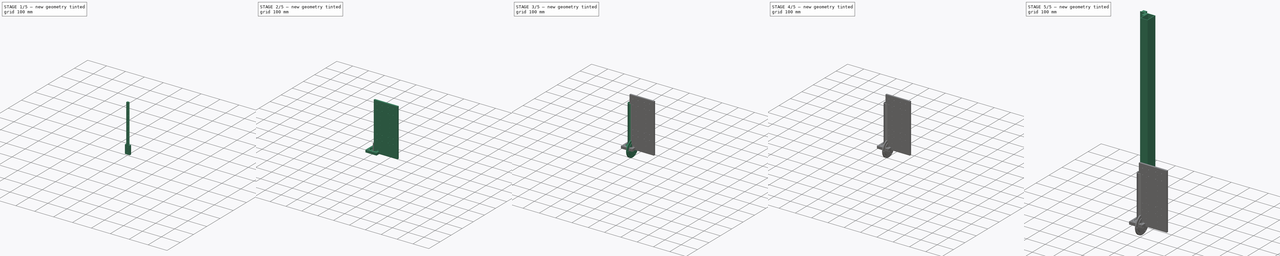
[diagram: build sequence overview — one tinted view per stage of 5, left to right]
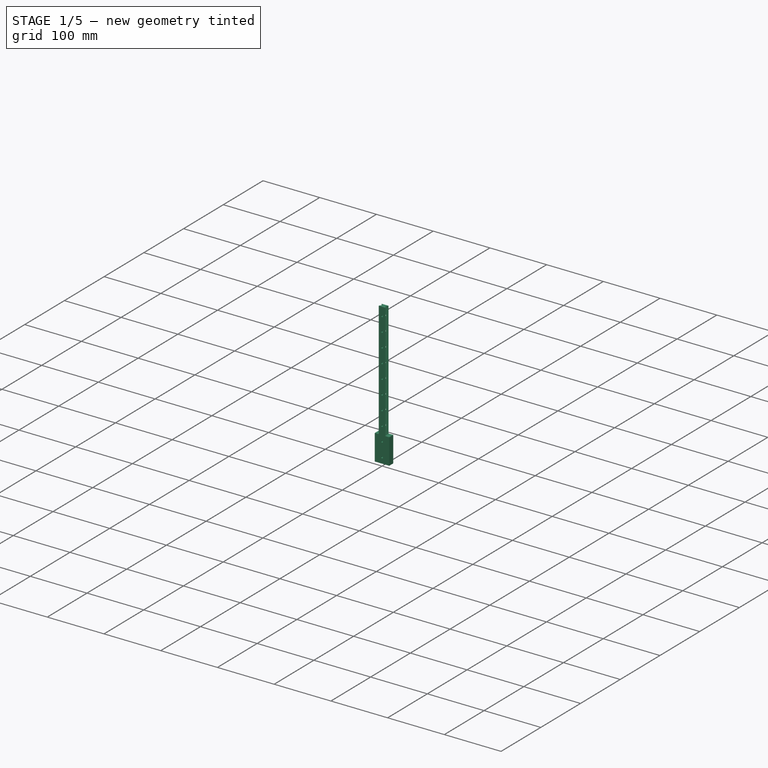
[diagram: stage 1 of 5 — iso view after this stage's code; geometry added in this stage tinted green]
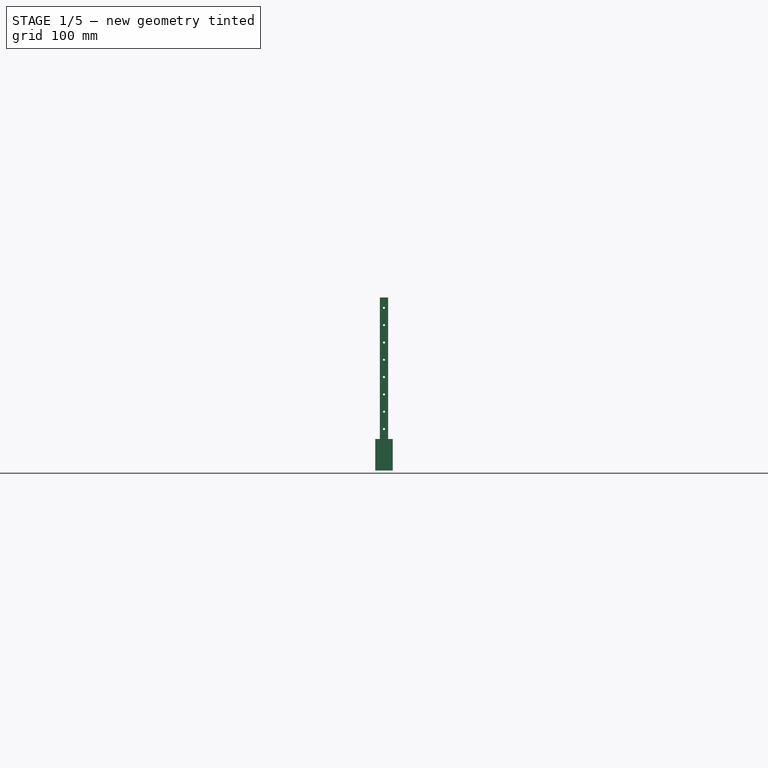
[diagram: stage 1 of 5 — front view after this stage's code; geometry added in this stage tinted green]
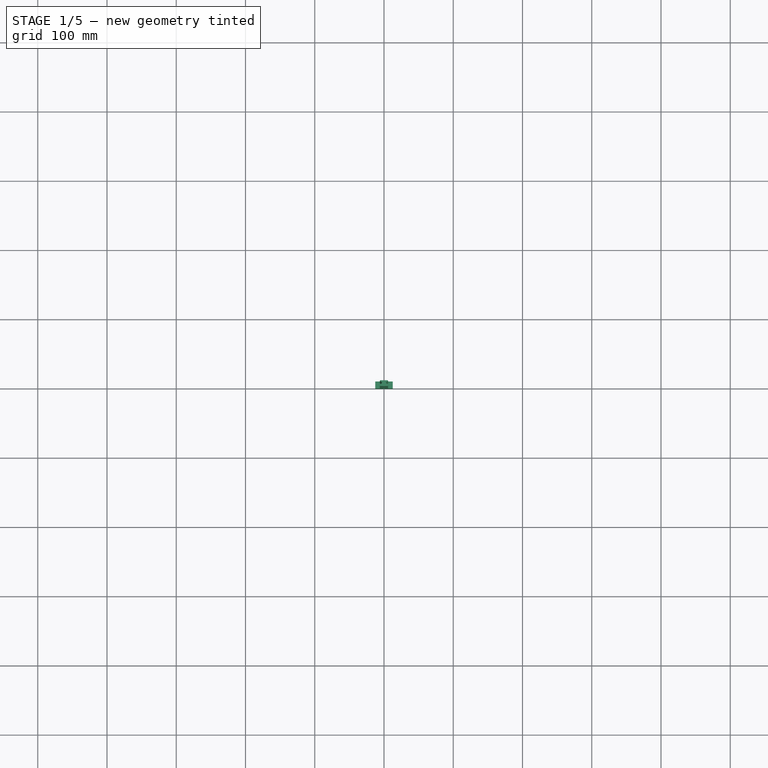
[diagram: stage 1 of 5 — top view after this stage's code; geometry added in this stage tinted green]
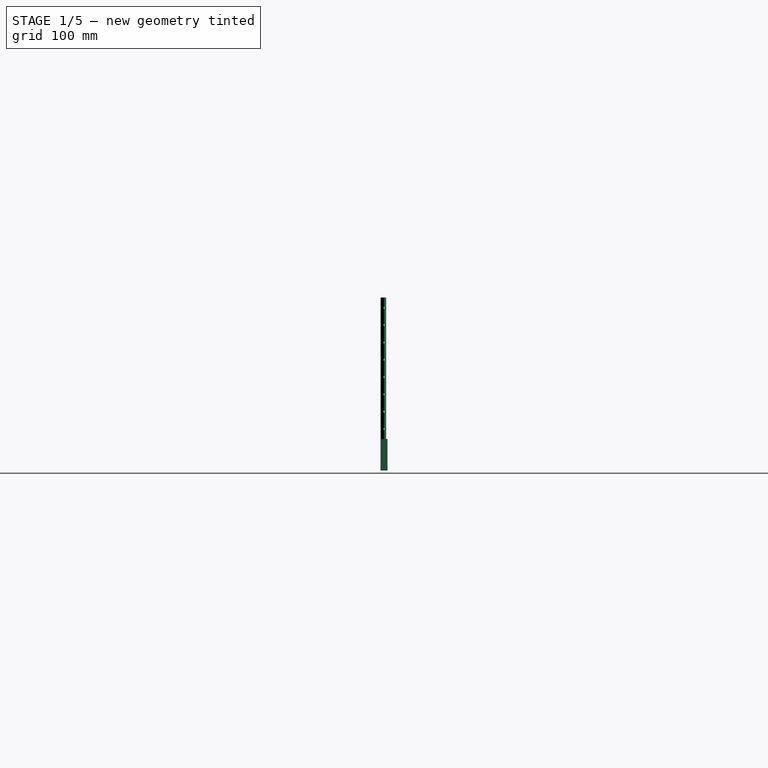
[diagram: stage 1 of 5 — right view after this stage's code; geometry added in this stage tinted green]
FCSTD DOCUMENT  (FreeCAD 0.21R33771 (Git))
Label: Ass-carro
License: All rights reserved
LicenseURL: http://en.wikipedia.org/wiki/All_rights_reserved
objects: Sketcher::SketchObject×25, PartDesign::Body×13, PartDesign::Pad×12, PartDesign::Pocket×11, App::MeasureDistance×2, PartDesign::Chamfer×2, PartDesign::Revolution×1, PartDesign::Hole×1
note: 92 computed .brp shape members not serialized (recipe doc carries the construction recipe); baked Part::Feature solids carry a one-line shape summary decoded from their .brp

FEATURE [PartDesign::Body] Body002  label="Prima-Piastra-Carro"
  Group = -> [Sketch002,Pad002,Sketch003,Pocket,Sketch019,Pocket007]
  Origin = -> Origin002
  Placement = pos=(239,96,539) rot=(0,-1,0;1.5708rad)
  Tip = -> Pocket007
FEATURE [Sketcher::SketchObject] Sketch020
  FullyConstrained = true
  MapMode = 5
  Support = -> [XY_Plane011]
  sketch-geometry (10):
    g0: LineSegment StartX=-5.5 StartY=0 StartZ=0 EndX=5.5 EndY=0 EndZ=0
    g1: LineSegment StartX=5.5 StartY=8.15196 StartZ=0 EndX=-5.5 EndY=8.15196 EndZ=0
    g2: LineSegment StartX=-5.76828 StartY=7.23003 StartZ=0 EndX=-2.5 EndY=5.15196 EndZ=0
    g3: LineSegment StartX=-2.5 StartY=5.15196 StartZ=0 EndX=-5.89401 EndY=0.807831 EndZ=0
    g4: LineSegment StartX=5.76828 StartY=7.23003 StartZ=0 EndX=2.5 EndY=5.15196 EndZ=0
    g5: LineSegment StartX=2.5 StartY=5.15196 StartZ=0 EndX=5.89401 EndY=0.807831 EndZ=0
    g6: ArcOfCircle CenterX=-5.5 CenterY=0.5 CenterZ=0 NormalX=0 NormalY=0 NormalZ=1 AngleXU=0 Radius=0.5 StartAngle=2.47837 EndAngle=4.71239
    g7: ArcOfCircle CenterX=5.5 CenterY=0.5 CenterZ=0 NormalX=0 NormalY=0 NormalZ=1 AngleXU=0 Radius=0.5 StartAngle=4.71239 EndAngle=6.94641
    g8: ArcOfCircle CenterX=-5.5 CenterY=7.65196 CenterZ=0 NormalX=0 NormalY=0 NormalZ=1 AngleXU=0 Radius=0.5 StartAngle=1.5708 EndAngle=4.14604
    g9: ArcOfCircle CenterX=5.5 CenterY=7.65196 CenterZ=0 NormalX=0 NormalY=0 NormalZ=1 AngleXU=0 Radius=0.5 StartAngle=5.27874 EndAngle=7.85398
  constraints (23):
    c: Coincident(g3,g2)
    c: Coincident(g5,g4)
    c: Equal(g0,g1)
    c: Tangent(g3,g6) = -1.5708
    c: Tangent(g0,g6) = -1.5708
    c: Tangent(g5,g7) = 1.5708
    c: Tangent(g0,g7) = -1.5708
    c: Radius(g7) = 0.5
    c: Equal(g6,g7)
    c: Tangent(g2,g8) = -1.5708
    c: Tangent(g1,g8) = -1.5708
    c: Tangent(g1,g9) = -1.5708
    c: Tangent(g4,g9) = 1.5708
    c: Symmetric(g6,g7,g-2)
    c: Symmetric(g8,g9,g-2)
    c: Equal(g7,g9)
    c: Equal(g9,g8)
    c: Symmetric(g2,g4,g-2)
    c: DistanceX(g6,g7) = 11
    c: DistanceY(g4,g9) = 2.5
    c: DistanceX(g2,g-1) = 2.5
    c: PointOnObject(g-1,g0)
    c: Angle(g5,g0) = 0.907571
FEATURE [PartDesign::Pad] Pad010
  Direction = (0,0,1)
  Length = 250
  Length2 = 10
  Profile = -> Sketch020
  ReferenceAxis = -> Sketch020 [N_Axis]
  Type = 0
FEATURE [Sketcher::SketchObject] Sketch021
  FullyConstrained = true
  MapMode = 5
  Placement = pos=(0,8.15196,0) rot=(0,0.707107,0.707107;3.14159rad)
  Support = -> [Pad010]
  sketch-geometry (19):
    g0: Circle CenterX=0 CenterY=10 CenterZ=0 NormalX=0 NormalY=0 NormalZ=1 AngleXU=0 Radius=1.5
    g1: Circle CenterX=0 CenterY=35 CenterZ=0 NormalX=0 NormalY=0 NormalZ=1 AngleXU=0 Radius=1.5
    g2: LineSegment StartX=0 StartY=10 StartZ=0 EndX=0 EndY=35 EndZ=0
    g3: Circle CenterX=1.64331e-11 CenterY=60 CenterZ=0 NormalX=0 NormalY=0 NormalZ=1 AngleXU=0 Radius=1.5
    g4: LineSegment StartX=0 StartY=35 StartZ=0 EndX=1.64331e-11 EndY=60 EndZ=0
    g5: Circle CenterX=2.91086e-11 CenterY=85 CenterZ=0 NormalX=0 NormalY=0 NormalZ=1 AngleXU=0 Radius=1.5
    g6: LineSegment StartX=1.64331e-11 StartY=60 StartZ=0 EndX=2.91086e-11 EndY=85 EndZ=0
    g7: Circle CenterX=3.89814e-11 CenterY=110 CenterZ=0 NormalX=0 NormalY=0 NormalZ=1 AngleXU=0 Radius=1.5
    g8: LineSegment StartX=2.91086e-11 StartY=85 StartZ=0 EndX=3.89814e-11 EndY=110 EndZ=0
    g9: Circle CenterX=5.02481e-11 CenterY=135 CenterZ=0 NormalX=0 NormalY=0 NormalZ=1 AngleXU=0 Radius=1.5
    g10: LineSegment StartX=3.89814e-11 StartY=110 StartZ=0 EndX=5.02481e-11 EndY=135 EndZ=0
    g11: Circle CenterX=6.14909e-11 CenterY=160 CenterZ=0 NormalX=0 NormalY=0 NormalZ=1 AngleXU=0 Radius=1.5
    g12: LineSegment StartX=5.02481e-11 StartY=135 StartZ=0 EndX=6.14909e-11 EndY=160 EndZ=0
    g13: Circle CenterX=7.26801e-11 CenterY=185 CenterZ=0 NormalX=0 NormalY=0 NormalZ=1 AngleXU=0 Radius=1.5
    g14: LineSegment StartX=6.14909e-11 StartY=160 StartZ=0 EndX=7.26801e-11 EndY=185 EndZ=0
    g15: Circle CenterX=8.35849e-11 CenterY=210 CenterZ=0 NormalX=0 NormalY=0 NormalZ=1 AngleXU=0 Radius=1.5
    g16: LineSegment StartX=7.26801e-11 StartY=185 StartZ=0 EndX=8.35849e-11 EndY=210 EndZ=0
    g17: Circle CenterX=9.38906e-11 CenterY=235 CenterZ=0 NormalX=0 NormalY=0 NormalZ=1 AngleXU=0 Radius=1.5
    g18: LineSegment StartX=8.35849e-11 StartY=210 StartZ=0 EndX=9.38906e-11 EndY=235 EndZ=0
  constraints (48):
    c: PointOnObject(g0,g-2)
    c: Radius(g0) = 1.5
    c: DistanceY(g-1,g0) = 10
    c: Radius(g1) = 1.5
    c: Coincident(g0,g2)
    c: Coincident(g1,g2)
    c: Distance(g2) = 25
    c: Radius(g3) = 1.5
    c: Coincident(g1,g4)
    c: Coincident(g3,g4)
    c: Equal(g2,g4)
    c: Parallel(g4,g2)
    c: Radius(g5) = 1.5
    c: Coincident(g3,g6)
    c: Coincident(g5,g6)
    c: Equal(g2,g6)
    c: Parallel(g6,g2)
    c: Radius(g7) = 1.5
    c: Coincident(g5,g8)
    c: Coincident(g7,g8)
    c: Equal(g2,g8)
    c: Parallel(g8,g2)
    c: Radius(g9) = 1.5
    c: Coincident(g7,g10)
    c: Coincident(g9,g10)
    c: Equal(g2,g10)
    c: Parallel(g10,g2)
    c: Radius(g11) = 1.5
    c: Coincident(g9,g12)
    c: Coincident(g11,g12)
    c: Equal(g2,g12)
    c: Parallel(g12,g2)
    c: Radius(g13) = 1.5
    c: Coincident(g11,g14)
    c: Coincident(g13,g14)
    c: Equal(g2,g14)
    c: Parallel(g14,g2)
    c: Radius(g15) = 1.5
    c: Coincident(g13,g16)
    c: Coincident(g15,g16)
    c: Equal(g2,g16)
    c: Parallel(g16,g2)
    c: Radius(g17) = 1.5
    c: Coincident(g15,g18)
    c: Coincident(g17,g18)
    c: Equal(g2,g18)
    c: Parallel(g18,g2)
    c: PointOnObject(g1,g-2)
FEATURE [PartDesign::Pocket] Pocket008
  BaseFeature = -> Pad010
  Direction = (0,-1,2e-16)
  Length = 5
  Length2 = 5
  Profile = -> Sketch021
  ReferenceAxis = -> Sketch021 [N_Axis]
  Type = 1
FEATURE [Sketcher::SketchObject] Sketch022
  ExternalGeometry = -> [Pocket008]
  FullyConstrained = true
  MapMode = 5
  Placement = pos=(0,8.15196,0) rot=(0,0.707107,0.707107;3.14159rad)
  Support = -> [Pocket008]
  sketch-geometry (19):
    g0: Circle CenterX=0 CenterY=235 CenterZ=0 NormalX=0 NormalY=0 NormalZ=1 AngleXU=0 Radius=3
    g1: Circle CenterX=0 CenterY=210 CenterZ=0 NormalX=0 NormalY=0 NormalZ=1 AngleXU=0 Radius=3
    g2: LineSegment StartX=0 StartY=235 StartZ=0 EndX=0 EndY=210 EndZ=0
    g3: Circle CenterX=0 CenterY=185 CenterZ=0 NormalX=0 NormalY=0 NormalZ=1 AngleXU=0 Radius=3
    g4: LineSegment StartX=0 StartY=210 StartZ=0 EndX=0 EndY=185 EndZ=0
    g5: Circle CenterX=0 CenterY=160 CenterZ=0 NormalX=0 NormalY=0 NormalZ=1 AngleXU=0 Radius=3
    g6: LineSegment StartX=0 StartY=185 StartZ=0 EndX=0 EndY=160 EndZ=0
    g7: Circle CenterX=0 CenterY=135 CenterZ=0 NormalX=0 NormalY=0 NormalZ=1 AngleXU=0 Radius=3
    g8: LineSegment StartX=0 StartY=160 StartZ=0 EndX=0 EndY=135 EndZ=0
    g9: Circle CenterX=0 CenterY=110 CenterZ=0 NormalX=0 NormalY=0 NormalZ=1 AngleXU=0 Radius=3
    g10: LineSegment StartX=0 StartY=135 StartZ=0 EndX=0 EndY=110 EndZ=0
    g11: Circle CenterX=0 CenterY=85 CenterZ=0 NormalX=0 NormalY=0 NormalZ=1 AngleXU=0 Radius=3
    g12: LineSegment StartX=0 StartY=110 StartZ=0 EndX=0 EndY=85 EndZ=0
    g13: Circle CenterX=0 CenterY=60 CenterZ=0 NormalX=0 NormalY=0 NormalZ=1 AngleXU=0 Radius=3
    g14: LineSegment StartX=0 StartY=85 StartZ=0 EndX=0 EndY=60 EndZ=0
    g15: Circle CenterX=0 CenterY=35 CenterZ=0 NormalX=0 NormalY=0 NormalZ=1 AngleXU=0 Radius=3
    g16: LineSegment StartX=0 StartY=60 StartZ=0 EndX=0 EndY=35 EndZ=0
    g17: Circle CenterX=0 CenterY=10 CenterZ=0 NormalX=0 NormalY=0 NormalZ=1 AngleXU=0 Radius=3
    g18: LineSegment StartX=0 StartY=35 StartZ=0 EndX=0 EndY=10 EndZ=0
  constraints (46):
    c: Coincident(g0,g-3)
    c: Radius(g0) = 3
    c: Radius(g1) = 3
    c: Coincident(g0,g2)
    c: Coincident(g1,g2)
    c: Radius(g3) = 3
    c: Coincident(g1,g4)
    c: Coincident(g3,g4)
    c: Equal(g2,g4)
    c: Parallel(g4,g2)
    c: Radius(g5) = 3
    c: Coincident(g3,g6)
    c: Coincident(g5,g6)
    c: Equal(g2,g6)
    c: Parallel(g6,g2)
    c: Radius(g7) = 3
    c: Coincident(g5,g8)
    c: Coincident(g7,g8)
    c: Equal(g2,g8)
    c: Parallel(g8,g2)
    c: Radius(g9) = 3
    c: Coincident(g7,g10)
    c: Coincident(g9,g10)
    c: Equal(g2,g10)
    c: Parallel(g10,g2)
    c: Radius(g11) = 3
    c: Coincident(g9,g12)
    c: Coincident(g11,g12)
    c: Equal(g2,g12)
    c: Parallel(g12,g2)
    c: Radius(g13) = 3
    c: Coincident(g11,g14)
    c: Coincident(g13,g14)
    c: Equal(g2,g14)
    c: Parallel(g14,g2)
    c: Radius(g15) = 3
    c: Coincident(g13,g16)
    c: Coincident(g15,g16)
    c: Equal(g2,g16)
    c: Parallel(g16,g2)
    c: Radius(g17) = 3
    c: Coincident(g15,g18)
    c: Coincident(g17,g18)
    c: Equal(g2,g18)
    c: Parallel(g18,g2)
    c: Coincident(g1,g-4)
FEATURE [PartDesign::Pocket] Pocket009
  BaseFeature = -> Pocket008
  Direction = (0,-1,2e-16)
  Length = 5
  Length2 = 5
  Profile = -> Sketch022
  ReferenceAxis = -> Sketch022 [N_Axis]
  Type = 0
FEATURE [PartDesign::Body] Body011  label="GuidaQuadra12"
  Group = -> [Sketch020,Pad010,Sketch021,Pocket008,Sketch022,Pocket009]
  Origin = -> Origin011
  Placement = pos=(-11,96,579) rot=(0,1,0;1.5708rad)
  Tip = -> Pocket009
FEATURE [Sketcher::SketchObject] Sketch023
  FullyConstrained = true
  MapMode = 5
  Support = -> [XY_Plane012]
  sketch-geometry (14):
    g0: LineSegment StartX=12.715 StartY=9e-16 StartZ=0 EndX=12.715 EndY=10 EndZ=0
    g1: LineSegment StartX=12.715 StartY=10 StartZ=0 EndX=-12.715 EndY=10 EndZ=0
    g2: LineSegment StartX=-5.5 StartY=5.2 StartZ=0 EndX=5.5 EndY=5.2 EndZ=0
    g3: LineSegment StartX=4.39099 StartY=0 StartZ=0 EndX=12.715 EndY=9e-16 EndZ=0
    g4: LineSegment StartX=-5.81795 StartY=4.09117 StartZ=0 EndX=-3.08803 EndY=2.38533 EndZ=0
    g5: LineSegment StartX=-2.9848 StartY=1.79984 StartZ=0 EndX=-4.39099 EndY=0 EndZ=0
    g6: LineSegment StartX=5.81795 StartY=4.09117 StartZ=0 EndX=3.08803 EndY=2.38533 EndZ=0
    g7: LineSegment StartX=2.9848 StartY=1.79984 StartZ=0 EndX=4.39099 EndY=0 EndZ=0
    g8: LineSegment StartX=-12.715 StartY=10 StartZ=0 EndX=-12.715 EndY=0 EndZ=0
    g9: LineSegment StartX=-12.715 StartY=0 StartZ=0 EndX=-4.39099 EndY=0 EndZ=0
    g10: ArcOfCircle CenterX=3.3 CenterY=2.04611 CenterZ=0 NormalX=0 NormalY=0 NormalZ=1 AngleXU=0 Radius=0.4 StartAngle=2.1293 EndAngle=3.80482
    g11: ArcOfCircle CenterX=-3.3 CenterY=2.04611 CenterZ=0 NormalX=0 NormalY=0 NormalZ=1 AngleXU=0 Radius=0.4 StartAngle=5.61996 EndAngle=7.29548
    g12: ArcOfCircle CenterX=-5.5 CenterY=4.6 CenterZ=0 NormalX=0 NormalY=0 NormalZ=1 AngleXU=0 Radius=0.6 StartAngle=1.5708 EndAngle=4.15388
    g13: ArcOfCircle CenterX=5.5 CenterY=4.6 CenterZ=0 NormalX=0 NormalY=0 NormalZ=1 AngleXU=0 Radius=0.6 StartAngle=5.27089 EndAngle=7.85398
  constraints (34):
    c: Coincident(g3,g0)
    c: Coincident(g0,g1)
    c: Vertical(g0)
    c: DistanceY(g0,g0) = 10
    c: Coincident(g7,g3)
    c: Coincident(g8,g1)
    c: PointOnObject(g8,g-1)
    c: Vertical(g8)
    c: Coincident(g9,g8)
    c: Coincident(g9,g5)
    c: Horizontal(g9)
    c: Symmetric(g1,g0,g-2)
    c: Symmetric(g5,g3,g-2)
    c: Tangent(g7,g10) = -1.5708
    c: Tangent(g6,g10) = -1.5708
    c: Tangent(g5,g11) = 1.5708
    c: Tangent(g4,g11) = 1.5708
    c: Tangent(g4,g12) = -1.5708
    c: Tangent(g2,g12) = 1.5708
    c: Tangent(g6,g13) = 1.5708
    c: Tangent(g2,g13) = 1.5708
    c: Radius(g13) = 0.6
    c: Equal(g13,g12)
    c: Radius(g11) = 0.4
    c: Equal(g11,g10)
    c: Symmetric(g12,g13,g-2)
    c: Symmetric(g11,g10,g-2)
    c: DistanceY(g5,g12) = 4.6
    c: Angle(g2,g6) = 0.558505
    c: Angle(g7,g-1) = 0.907571
    c: DistanceX(g11,g-1) = 3.3
    c: DistanceX(g1,g1) = 25.43
    c: DistanceY(g8,g8) = 10
    c: DistanceX(g12,g13) = 11
FEATURE [PartDesign::Pad] Pad011
  Direction = (0,0,1)
  Length = 45.5
  Length2 = 100
  Profile = -> Sketch023
  Type = 0
FEATURE [Sketcher::SketchObject] Sketch024
  FullyConstrained = true
  MapMode = 5
  Placement = pos=(0,10,0) rot=(0,0.707107,0.707107;3.14159rad)
  Support = -> [Pad011]
  sketch-geometry (8):
    g0: LineSegment StartX=-10 StartY=32 StartZ=0 EndX=10 EndY=32 EndZ=0
    g1: LineSegment StartX=10 StartY=32 StartZ=0 EndX=10 EndY=12 EndZ=0
    g2: LineSegment StartX=10 StartY=12 StartZ=0 EndX=-10 EndY=12 EndZ=0
    g3: LineSegment StartX=-10 StartY=12 StartZ=0 EndX=-10 EndY=32 EndZ=0
    g4: Circle CenterX=-10 CenterY=12 CenterZ=0 NormalX=0 NormalY=0 NormalZ=1 AngleXU=0 Radius=1.4
    g5: Circle CenterX=-10 CenterY=32 CenterZ=0 NormalX=0 NormalY=0 NormalZ=1 AngleXU=0 Radius=1.4
    g6: Circle CenterX=10 CenterY=32 CenterZ=0 NormalX=0 NormalY=0 NormalZ=1 AngleXU=0 Radius=1.4
    g7: Circle CenterX=10 CenterY=12 CenterZ=0 NormalX=0 NormalY=0 NormalZ=1 AngleXU=0 Radius=1.4
  constraints (19):
    c: Horizontal(g0)
    c: Coincident(g1,g0)
    c: Vertical(g1)
    c: Coincident(g3,g2)
    c: Coincident(g3,g0)
    c: Coincident(g4,g2)
    c: Vertical(g3)
    c: DistanceX(g0,g0) = 20
    c: DistanceY(g1,g1) = 20
    c: Coincident(g2,g1)
    c: Radius(g4) = 1.4
    c: Coincident(g5,g0)
    c: Coincident(g6,g0)
    c: Coincident(g7,g1)
    c: Equal(g4,g7)
    c: Equal(g7,g6)
    c: Equal(g6,g5)
    c: Symmetric(g7,g4,g-2)
    c: DistanceY(g-1,g7) = 12
FEATURE [PartDesign::Pocket] Pocket010
  BaseFeature = -> Pad011
  Direction = (0,-1,2e-16)
  Length = 6
  Length2 = 5
  Profile = -> Sketch024
  ReferenceAxis = -> Sketch024 [N_Axis]
  Type = 0
FEATURE [PartDesign::Body] Body012  label="Pattino12"
  Group = -> [Sketch023,Pad011,Sketch024,Pocket010]
  Origin = -> Origin012
  Placement = pos=(20,99,579) rot=(0,1,0;1.5708rad)
  Tip = -> Pocket010
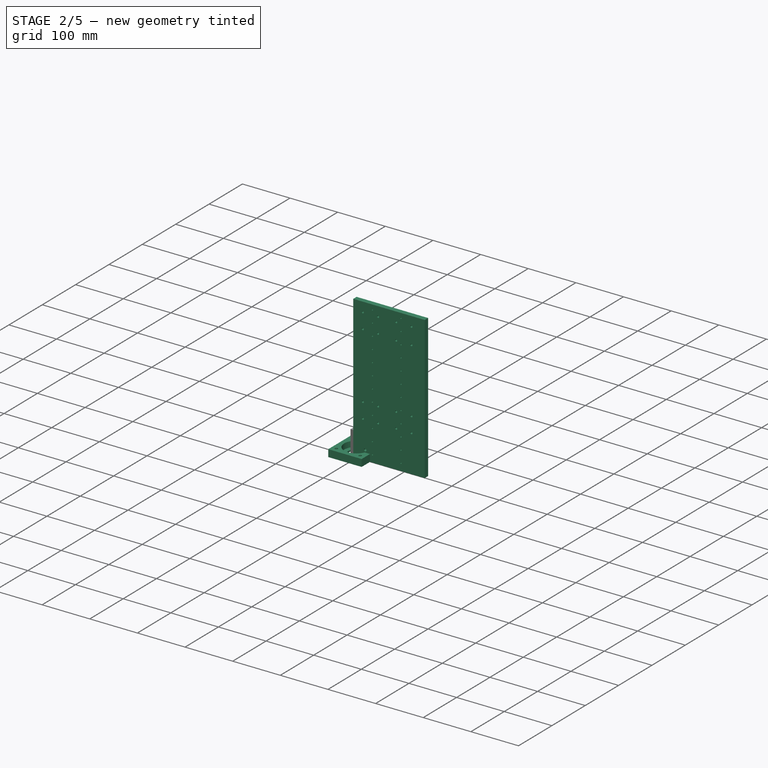
[diagram: stage 2 of 5 — iso view after this stage's code; geometry added in this stage tinted green]
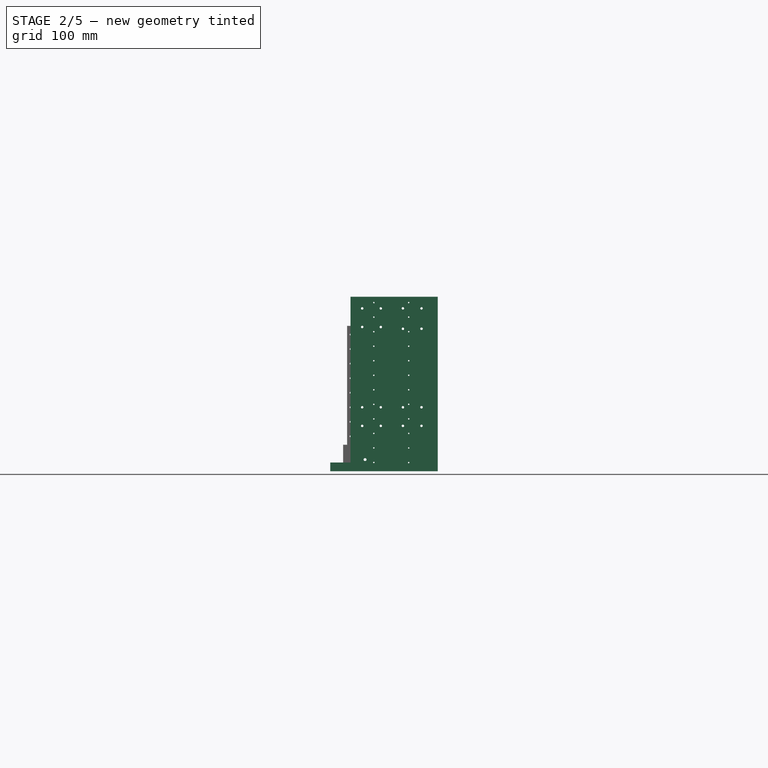
[diagram: stage 2 of 5 — front view after this stage's code; geometry added in this stage tinted green]
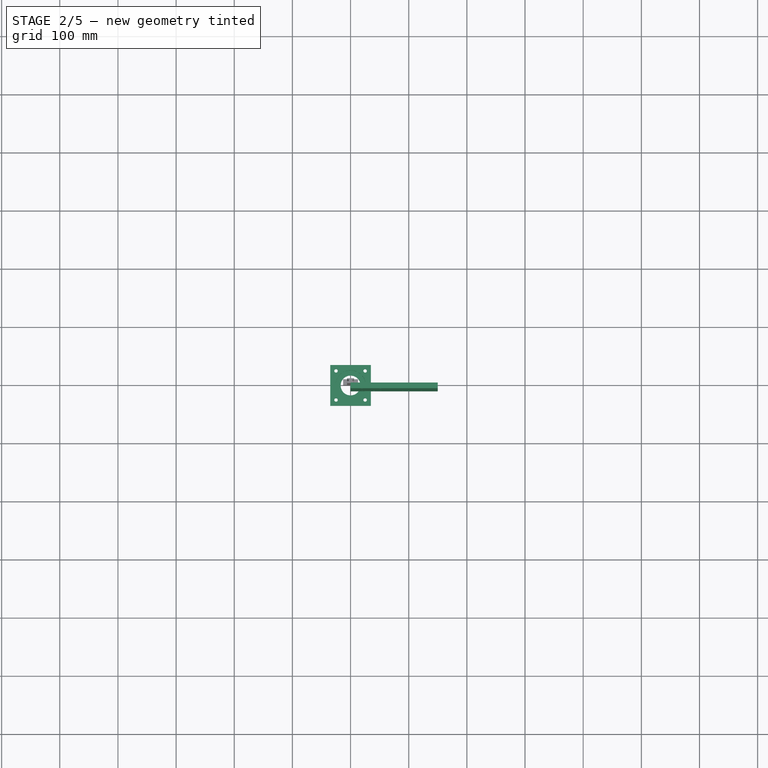
[diagram: stage 2 of 5 — top view after this stage's code; geometry added in this stage tinted green]
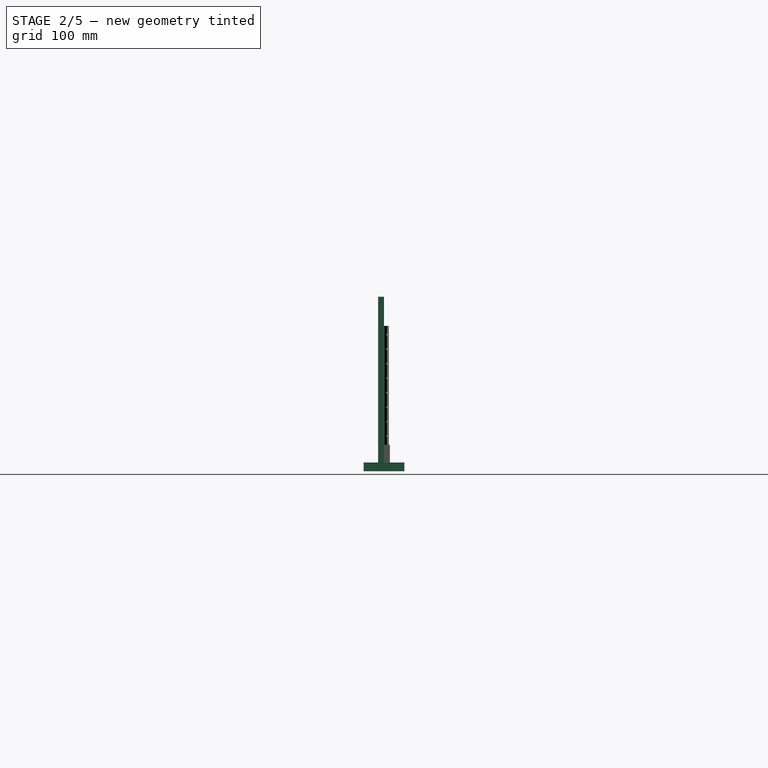
[diagram: stage 2 of 5 — right view after this stage's code; geometry added in this stage tinted green]
FEATURE [PartDesign::Body] Body001  label="barra2"
  Group = -> [Sketch001,Pad001]
  Origin = -> Origin001
  Placement = pos=(120,0,1000) rot=(0,1,0;3.14159rad)
  Tip = -> Pad001
FEATURE [Sketcher::SketchObject] Sketch002
  FullyConstrained = true
  MapMode = 5
  Placement = pos=(0,0,0) rot=(1,0,0;1.5708rad)
  Support = -> [XZ_Plane002]
  sketch-geometry (4):
    g0: LineSegment StartX=0 StartY=0 StartZ=0 EndX=150 EndY=0 EndZ=0
    g1: LineSegment StartX=150 StartY=0 StartZ=0 EndX=150 EndY=300 EndZ=0
    g2: LineSegment StartX=150 StartY=300 StartZ=0 EndX=0 EndY=300 EndZ=0
    g3: LineSegment StartX=0 StartY=300 StartZ=0 EndX=0 EndY=0 EndZ=0
  constraints (11):
    c: Coincident(g0,g1)
    c: Coincident(g1,g2)
    c: Coincident(g2,g3)
    c: Coincident(g3,g0)
    c: Horizontal(g0)
    c: Horizontal(g2)
    c: Vertical(g1)
    c: Vertical(g3)
    c: Coincident(g0,g-1)
    c: DistanceX(g0,g0) = 150
    c: DistanceY(g3,g3) = 300
FEATURE [PartDesign::Pad] Pad002
  Direction = (1,1,1)
  Length = 10
  Length2 = 100
  Placement = pos=(0,0,0) rot=(1,0,0;1.5708rad)
  Profile = -> Sketch002
  Type = 0
FEATURE [Sketcher::SketchObject] Sketch003
  FullyConstrained = false
  MapMode = 5
  Placement = pos=(0,-10,0) rot=(1,0,0;1.5708rad)
  Support = -> [Pad002]
  sketch-geometry (80):
    g0: Circle CenterX=20 CenterY=280 CenterZ=0 NormalX=0 NormalY=0 NormalZ=1 AngleXU=0 Radius=2.1
    g1: Circle CenterX=52 CenterY=280 CenterZ=0 NormalX=0 NormalY=0 NormalZ=1 AngleXU=0 Radius=2.1
    g2: LineSegment StartX=20 StartY=280 StartZ=0 EndX=52 EndY=280 EndZ=0
    g3: Circle CenterX=20 CenterY=248 CenterZ=0 NormalX=0 NormalY=0 NormalZ=1 AngleXU=0 Radius=2.1
    g4: LineSegment StartX=20 StartY=280 StartZ=0 EndX=20 EndY=248 EndZ=0
    g5: Circle CenterX=52 CenterY=248 CenterZ=0 NormalX=0 NormalY=0 NormalZ=1 AngleXU=0 Radius=2.1
    g6: LineSegment StartX=20 StartY=248 StartZ=0 EndX=52 EndY=248 EndZ=0
    g7: Circle CenterX=90 CenterY=280 CenterZ=0 NormalX=0 NormalY=0 NormalZ=1 AngleXU=0 Radius=2.1
    g8: Circle CenterX=122 CenterY=280 CenterZ=0 NormalX=0 NormalY=0 NormalZ=1 AngleXU=0 Radius=2.1
    g9: LineSegment StartX=90 StartY=280 StartZ=0 EndX=122 EndY=280 EndZ=0
    g10: Circle CenterX=90 CenterY=245 CenterZ=0 NormalX=0 NormalY=0 NormalZ=1 AngleXU=0 Radius=2.1
    g11: LineSegment StartX=90 StartY=280 StartZ=0 EndX=90 EndY=245 EndZ=0
    g12: Circle CenterX=122 CenterY=245 CenterZ=0 NormalX=0 NormalY=0 NormalZ=1 AngleXU=0 Radius=2.1
    g13: LineSegment StartX=90 StartY=245 StartZ=0 EndX=122 EndY=245 EndZ=0
    g14: LineSegment StartX=20 StartY=280 StartZ=0 EndX=90 EndY=280 EndZ=0
    g15: Circle CenterX=20 CenterY=110 CenterZ=0 NormalX=0 NormalY=0 NormalZ=1 AngleXU=0 Radius=2.1
    g16: Circle CenterX=52 CenterY=110 CenterZ=0 NormalX=0 NormalY=0 NormalZ=1 AngleXU=0 Radius=2.1
    g17: LineSegment StartX=20 StartY=110 StartZ=0 EndX=52 EndY=110 EndZ=0
    g18: Circle CenterX=20 CenterY=78 CenterZ=0 NormalX=0 NormalY=0 NormalZ=1 AngleXU=0 Radius=2.1
    g19: LineSegment StartX=20 StartY=110 StartZ=0 EndX=20 EndY=78 EndZ=0
    g20: Circle CenterX=52 CenterY=78 CenterZ=0 NormalX=0 NormalY=0 NormalZ=1 AngleXU=0 Radius=2.1
    g21: LineSegment StartX=20 StartY=78 StartZ=0 EndX=52 EndY=78 EndZ=0
    g22: LineSegment StartX=20 StartY=280 StartZ=0 EndX=20 EndY=110 EndZ=0
    g23: Circle CenterX=90 CenterY=110 CenterZ=0 NormalX=0 NormalY=0 NormalZ=1 AngleXU=0 Radius=2.1
    g24: Circle CenterX=122 CenterY=110 CenterZ=0 NormalX=0 NormalY=0 NormalZ=1 AngleXU=0 Radius=2.1
    g25: LineSegment StartX=90 StartY=110 StartZ=0 EndX=122 EndY=110 EndZ=0
    g26: Circle CenterX=90 CenterY=78 CenterZ=0 NormalX=0 NormalY=0 NormalZ=1 AngleXU=0 Radius=2.1
    g27: LineSegment StartX=90 StartY=110 StartZ=0 EndX=90 EndY=78 EndZ=0
    g28: Circle CenterX=122 CenterY=78 CenterZ=0 NormalX=0 NormalY=0 NormalZ=1 AngleXU=0 Radius=2.1
    g29: LineSegment StartX=90 StartY=78 StartZ=0 EndX=122 EndY=78 EndZ=0
    g30: LineSegment StartX=20 StartY=110 StartZ=0 EndX=90 EndY=110 EndZ=0
    g31: Circle CenterX=25 CenterY=20 CenterZ=0 NormalX=0 NormalY=0 NormalZ=1 AngleXU=0 Radius=2.5
    g32: LineSegment StartX=25 StartY=20 StartZ=0 EndX=25 EndY=220 EndZ=0
    g33: Circle CenterX=40 CenterY=290 CenterZ=0 NormalX=0 NormalY=0 NormalZ=1 AngleXU=0 Radius=1.2
    g34: Circle CenterX=100 CenterY=290 CenterZ=0 NormalX=0 NormalY=0 NormalZ=1 AngleXU=0 Radius=1.2
    g35: LineSegment StartX=40 StartY=290 StartZ=0 EndX=100 EndY=290 EndZ=0
    g36: Circle CenterX=40 CenterY=265 CenterZ=0 NormalX=0 NormalY=0 NormalZ=1 AngleXU=0 Radius=1.2
    g37: LineSegment StartX=40 StartY=290 StartZ=0 EndX=40 EndY=265 EndZ=0
    g38: Circle CenterX=100 CenterY=265 CenterZ=0 NormalX=0 NormalY=0 NormalZ=1 AngleXU=0 Radius=1.2
    g39: LineSegment StartX=40 StartY=265 StartZ=0 EndX=100 EndY=265 EndZ=0
    g40: Circle CenterX=40 CenterY=240 CenterZ=0 NormalX=0 NormalY=0 NormalZ=1 AngleXU=0 Radius=1.2
    g41: LineSegment StartX=40 StartY=265 StartZ=0 EndX=40 EndY=240 EndZ=0
    g42: Circle CenterX=100 CenterY=240 CenterZ=0 NormalX=0 NormalY=0 NormalZ=1 AngleXU=0 Radius=1.2
    g43: LineSegment StartX=40 StartY=240 StartZ=0 EndX=100 EndY=240 EndZ=0
    g44: Circle CenterX=40 CenterY=215 CenterZ=0 NormalX=0 NormalY=0 NormalZ=1 AngleXU=0 Radius=1.2
    g45: LineSegment StartX=40 StartY=240 StartZ=0 EndX=40 EndY=215 EndZ=0
    g46: Circle CenterX=100 CenterY=215 CenterZ=0 NormalX=0 NormalY=0 NormalZ=1 AngleXU=0 Radius=1.2
    g47: LineSegment StartX=40 StartY=215 StartZ=0 EndX=100 EndY=215 EndZ=0
    g48: Circle CenterX=40 CenterY=190 CenterZ=0 NormalX=0 NormalY=0 NormalZ=1 AngleXU=0 Radius=1.2
    g49: LineSegment StartX=40 StartY=215 StartZ=0 EndX=40 EndY=190 EndZ=0
    g50: Circle CenterX=100 CenterY=190 CenterZ=0 NormalX=0 NormalY=0 NormalZ=1 AngleXU=0 Radius=1.2
    g51: LineSegment StartX=40 StartY=190 StartZ=0 EndX=100 EndY=190 EndZ=0
    g52: Circle CenterX=40 CenterY=165 CenterZ=0 NormalX=0 NormalY=0 NormalZ=1 AngleXU=0 Radius=1.2
    g53: LineSegment StartX=40 StartY=190 StartZ=0 EndX=40 EndY=165 EndZ=0
    g54: Circle CenterX=100 CenterY=165 CenterZ=0 NormalX=0 NormalY=0 NormalZ=1 AngleXU=0 Radius=1.2
    g55: LineSegment StartX=40 StartY=165 StartZ=0 EndX=100 EndY=165 EndZ=0
    g56: Circle CenterX=40 CenterY=140 CenterZ=0 NormalX=0 NormalY=0 NormalZ=1 AngleXU=0 Radius=1.2
    g57: LineSegment StartX=40 StartY=165 StartZ=0 EndX=40 EndY=140 EndZ=0
    g58: Circle CenterX=100 CenterY=140 CenterZ=0 NormalX=0 NormalY=0 NormalZ=1 AngleXU=0 Radius=1.2
    g59: LineSegment StartX=40 StartY=140 StartZ=0 EndX=100 EndY=140 EndZ=0
    g60: Circle CenterX=40 CenterY=115 CenterZ=0 NormalX=0 NormalY=0 NormalZ=1 AngleXU=0 Radius=1.2
    g61: LineSegment StartX=40 StartY=140 StartZ=0 EndX=40 EndY=115 EndZ=0
    g62: Circle CenterX=100 CenterY=115 CenterZ=0 NormalX=0 NormalY=0 NormalZ=1 AngleXU=0 Radius=1.2
    g63: LineSegment StartX=40 StartY=115 StartZ=0 EndX=100 EndY=115 EndZ=0
    g64: Circle CenterX=40 CenterY=90 CenterZ=0 NormalX=0 NormalY=0 NormalZ=1 AngleXU=0 Radius=1.2
    g65: LineSegment StartX=40 StartY=115 StartZ=0 EndX=40 EndY=90 EndZ=0
    g66: Circle CenterX=100 CenterY=90 CenterZ=0 NormalX=0 NormalY=0 NormalZ=1 AngleXU=0 Radius=1.2
    g67: LineSegment StartX=40 StartY=90 StartZ=0 EndX=100 EndY=90 EndZ=0
    g68: Circle CenterX=40 CenterY=65 CenterZ=0 NormalX=0 NormalY=0 NormalZ=1 AngleXU=0 Radius=1.2
    g69: LineSegment StartX=40 StartY=90 StartZ=0 EndX=40 EndY=65 EndZ=0
    g70: Circle CenterX=100 CenterY=65 CenterZ=0 NormalX=0 NormalY=0 NormalZ=1 AngleXU=0 Radius=1.2
    g71: LineSegment StartX=40 StartY=65 StartZ=0 EndX=100 EndY=65 EndZ=0
    g72: Circle CenterX=40 CenterY=40 CenterZ=0 NormalX=0 NormalY=0 NormalZ=1 AngleXU=0 Radius=1.2
    g73: LineSegment StartX=40 StartY=65 StartZ=0 EndX=40 EndY=40 EndZ=0
    g74: Circle CenterX=100 CenterY=40 CenterZ=0 NormalX=0 NormalY=0 NormalZ=1 AngleXU=0 Radius=1.2
    g75: LineSegment StartX=40 StartY=40 StartZ=0 EndX=100 EndY=40 EndZ=0
    g76: Circle CenterX=40 CenterY=15 CenterZ=0 NormalX=0 NormalY=0 NormalZ=1 AngleXU=0 Radius=1.2
    g77: LineSegment StartX=40 StartY=40 StartZ=0 EndX=40 EndY=15 EndZ=0
    g78: Circle CenterX=100 CenterY=15 CenterZ=0 NormalX=0 NormalY=0 NormalZ=1 AngleXU=0 Radius=1.2
    g79: LineSegment StartX=40 StartY=15 StartZ=0 EndX=100 EndY=15 EndZ=0
  constraints (200):
    c: Coincident(g0,g2)
    c: Coincident(g1,g2)
    c: Distance(g2) = 32
    c: Angle(g2) = 0
    c: Coincident(g0,g4)
    c: Coincident(g3,g4)
    c: Distance(g4) = 32
    c: Perpendicular(g4,g2)
    c: Coincident(g3,g6)
    c: Coincident(g5,g6)
    c: Equal(g2,g6)
    c: Parallel(g6,g2)
    c: Coincident(g7,g9)
    c: Coincident(g8,g9)
    c: Distance(g9) = 32
    c: Angle(g9) = 0
    c: Coincident(g7,g11)
    c: Coincident(g10,g11)
    c: Distance(g11) = 35
    c: Perpendicular(g11,g9)
    c: Coincident(g10,g13)
    c: Coincident(g12,g13)
    c: Equal(g9,g13)
    c: Parallel(g13,g9)
    c: Coincident(g0,g14)
    c: Coincident(g7,g14)
    c: Distance(g14) = 70
    c: Angle(g14) = 0
    c: Coincident(g15,g17)
    c: Coincident(g16,g17)
    c: Distance(g17) = 32
    c: Angle(g17) = 0
    c: Coincident(g15,g19)
    c: Coincident(g18,g19)
    c: Distance(g19) = 32
    c: Perpendicular(g19,g17)
    c: Coincident(g18,g21)
    c: Coincident(g20,g21)
    c: Equal(g17,g21)
    c: Parallel(g21,g17)
    c: Coincident(g0,g22)
    c: Coincident(g15,g22)
    c: Distance(g22) = 170
    c: Perpendicular(g22,g14)
    c: Coincident(g23,g25)
    c: Coincident(g24,g25)
    c: Distance(g25) = 32
    c: Angle(g25) = 0
    c: Coincident(g23,g27)
    c: Coincident(g26,g27)
    c: Perpendicular(g27,g25)
    c: Coincident(g26,g29)
    c: Coincident(g28,g29)
    c: Equal(g25,g29)
    c: Parallel(g29,g25)
    c: Coincident(g15,g30)
    c: Coincident(g23,g30)
    c: Equal(g14,g30)
    c: Parallel(g30,g14)
    c: DistanceY(g-1,g0) = 280
    c: DistanceX(g-1,g0) = 20
    c: DistanceX(g-1,g31) = 25
    c: DistanceY(g-1,g31) = 20
    c: Coincident(g31,g32)
    c: Distance(g32) = 200
    c: Angle(g32) = 1.5708
    c: Radius(g0) = 2.1
    c: Equal(g3,g0)
    c: Equal(g0,g1)
    c: Equal(g1,g5)
    c: Equal(g5,g10)
    c: Equal(g10,g12)
    c: Equal(g12,g8)
    c: Equal(g8,g7)
    c: Equal(g16,g23)
    c: Equal(g23,g24)
    c: Equal(g24,g18)
    c: Equal(g18,g20)
    c: Equal(g15,g16)
    c: Equal(g24,g28)
    c: Equal(g28,g26)
    c: Equal(g27,g19)
    c: Radius(g33) = 1.2
    c: DistanceX(g0,g33) = 20
    c: DistanceY(g0,g33) = 10
    c: Coincident(g33,g35)
    c: Coincident(g34,g35)
    c: Distance(g35) = 60
    c: Angle(g35) = 0
    c: Coincident(g33,g37)
    c: Coincident(g36,g37)
    c: Distance(g37) = 25
    c: Perpendicular(g37,g35)
    c: Coincident(g36,g39)
    c: Coincident(g38,g39)
    c: Equal(g35,g39)
    c: Parallel(g39,g35)
    c: Coincident(g36,g41)
    c: Coincident(g40,g41)
    c: Equal(g37,g41)
    c: Perpendicular(g41,g35)
    c: Coincident(g40,g43)
    c: Coincident(g42,g43)
    c: Equal(g35,g43)
    c: Parallel(g43,g35)
    c: Coincident(g40,g45)
    c: Coincident(g44,g45)
    c: Equal(g37,g45)
    c: Perpendicular(g45,g35)
    c: Coincident(g44,g47)
    c: Coincident(g46,g47)
    c: Equal(g35,g47)
    c: Parallel(g47,g35)
    c: Coincident(g44,g49)
    c: Coincident(g48,g49)
    c: Equal(g37,g49)
    c: Perpendicular(g49,g35)
    c: Coincident(g48,g51)
    c: Coincident(g50,g51)
    c: Equal(g35,g51)
    c: Parallel(g51,g35)
    c: Coincident(g48,g53)
    c: Coincident(g52,g53)
    c: Equal(g37,g53)
    c: Perpendicular(g53,g35)
    c: Coincident(g52,g55)
    c: Coincident(g54,g55)
    c: Equal(g35,g55)
    c: Parallel(g55,g35)
    c: Coincident(g52,g57)
    c: Coincident(g56,g57)
    c: Equal(g37,g57)
    c: Perpendicular(g57,g35)
    c: Coincident(g56,g59)
    c: Coincident(g58,g59)
    c: Equal(g35,g59)
    c: Parallel(g59,g35)
    c: Coincident(g56,g61)
    c: Coincident(g60,g61)
    c: Equal(g37,g61)
    c: Perpendicular(g61,g35)
    c: Coincident(g60,g63)
    c: Coincident(g62,g63)
    c: Equal(g35,g63)
    c: Parallel(g63,g35)
    c: Coincident(g60,g65)
    c: Coincident(g64,g65)
    c: Equal(g37,g65)
    c: Perpendicular(g65,g35)
    c: Coincident(g64,g67)
    c: Coincident(g66,g67)
    c: Equal(g35,g67)
    c: Parallel(g67,g35)
    c: Coincident(g64,g69)
    c: Coincident(g68,g69)
    c: Equal(g37,g69)
    c: Perpendicular(g69,g35)
    c: Coincident(g68,g71)
    c: Coincident(g70,g71)
    c: Equal(g35,g71)
    c: Parallel(g71,g35)
    c: Coincident(g68,g73)
    c: Coincident(g72,g73)
    c: Equal(g37,g73)
    c: Perpendicular(g73,g35)
    c: Coincident(g72,g75)
    c: Coincident(g74,g75)
    c: Equal(g35,g75)
    c: Parallel(g75,g35)
    c: Coincident(g72,g77)
    c: Coincident(g76,g77)
    c: Equal(g37,g77)
    c: Perpendicular(g77,g35)
    c: Coincident(g76,g79)
    c: Coincident(g78,g79)
    c: Equal(g35,g79)
    c: Parallel(g79,g35)
    c: Equal(g33,g34)
    c: Equal(g34,g36)
    c: Equal(g36,g38)
    c: Equal(g38,g40)
    c: Equal(g40,g42)
    c: Equal(g42,g46)
    c: Equal(g46,g44)
    c: Equal(g44,g48)
    c: Equal(g48,g52)
    c: Equal(g52,g56)
    c: Equal(g56,g50)
    c: Equal(g50,g54)
    c: Equal(g54,g58)
    c: Equal(g56,g60)
    c: Equal(g60,g64)
    c: Equal(g64,g68)
    c: Equal(g68,g70)
    c: Equal(g70,g66)
    c: Equal(g66,g62)
    c: Equal(g68,g72)
    c: Equal(g72,g76)
    c: Equal(g76,g78)
    c: Equal(g78,g74)
FEATURE [PartDesign::Pocket] Pocket
  BaseFeature = -> Pad002
  Direction = (1,1,1)
  Length = 0
  Length2 = 100
  Placement = pos=(0,0,0) rot=(1,0,0;1.5708rad)
  Profile = -> Sketch003
  Type = 1
FEATURE [PartDesign::Body] Body009  label="AlberoMandrino30"
  Group = -> [Sketch015,Pad008]
  Origin = -> Origin009
  Placement = pos=(60,170,777) rot=(0,0,1;0rad)
  Tip = -> Pad008
FEATURE [Sketcher::SketchObject] Sketch016
  FullyConstrained = true
  MapMode = 5
  Support = -> [XY_Plane010]
  sketch-geometry (4):
    g0: LineSegment StartX=-35 StartY=35 StartZ=0 EndX=35 EndY=35 EndZ=0
    g1: LineSegment StartX=35 StartY=35 StartZ=0 EndX=35 EndY=-35 EndZ=0
    g2: LineSegment StartX=35 StartY=-35 StartZ=0 EndX=-35 EndY=-35 EndZ=0
    g3: LineSegment StartX=-35 StartY=-35 StartZ=0 EndX=-35 EndY=35 EndZ=0
  constraints (12):
    c: Coincident(g0,g1)
    c: Coincident(g1,g2)
    c: Coincident(g2,g3)
    c: Coincident(g3,g0)
    c: Horizontal(g0)
    c: Horizontal(g2)
    c: Vertical(g1)
    c: Vertical(g3)
    c: DistanceY(g1,g-1) = 35
    c: DistanceY(g3,g3) = 70
    c: DistanceX(g0,g0) = 70
    c: DistanceX(g2,g-1) = 35
FEATURE [PartDesign::Pad] Pad009
  Direction = (1,1,1)
  Length = 15
  Length2 = 100
  Profile = -> Sketch016
  Type = 0
FEATURE [Sketcher::SketchObject] Sketch017
  FullyConstrained = true
  MapMode = 5
  Placement = pos=(0,0,15) rot=(0,0,1;0rad)
  Support = -> [Pad009]
  sketch-geometry (1):
    g0: Circle CenterX=0 CenterY=0 CenterZ=0 NormalX=0 NormalY=0 NormalZ=1 AngleXU=0 Radius=26
  constraints (2):
    c: Coincident(g0,g-1)
    c: Radius(g0) = 26
FEATURE [PartDesign::Pocket] Pocket005
  BaseFeature = -> Pad009
  Direction = (1,1,1)
  Length = 11.8
  Length2 = 100
  Profile = -> Sketch017
  Type = 0
FEATURE [Sketcher::SketchObject] Sketch018
  FullyConstrained = false
  MapMode = 5
  Placement = pos=(0,0,15) rot=(0,0,1;0rad)
  Support = -> [Pocket005]
  sketch-geometry (9):
    g0: LineSegment StartX=-42.5383 StartY=25 StartZ=0 EndX=54.8117 EndY=25 EndZ=0
    g1: LineSegment StartX=-43.6541 StartY=-25 StartZ=0 EndX=49.7908 EndY=-25 EndZ=0
    g2: LineSegment StartX=-25 StartY=39.9582 StartZ=0 EndX=-25 EndY=-42.6081 EndZ=0
    g3: LineSegment StartX=25 StartY=42.3292 StartZ=0 EndX=25 EndY=-40.795 EndZ=0
    g4: Circle CenterX=-25 CenterY=25 CenterZ=0 NormalX=0 NormalY=0 NormalZ=1 AngleXU=0 Radius=3
    g5: Circle CenterX=25 CenterY=25 CenterZ=0 NormalX=0 NormalY=0 NormalZ=1 AngleXU=0 Radius=3
    g6: Circle CenterX=25 CenterY=-25 CenterZ=0 NormalX=0 NormalY=0 NormalZ=1 AngleXU=0 Radius=3
    g7: Circle CenterX=-25 CenterY=-25 CenterZ=0 NormalX=0 NormalY=0 NormalZ=1 AngleXU=0 Radius=3
    g8: Circle CenterX=0 CenterY=0 CenterZ=0 NormalX=0 NormalY=0 NormalZ=1 AngleXU=0 Radius=17
  constraints (18):
    c: Horizontal(g0)
    c: Horizontal(g1)
    c: Vertical(g2)
    c: Vertical(g3)
    c: PointOnObject(g4,g2)
    c: PointOnObject(g5,g0)
    c: PointOnObject(g6,g1)
    c: PointOnObject(g7,g1)
    c: PointOnObject(g5,g3)
    c: PointOnObject(g6,g3)
    c: Equal(g4,g5)
    c: Equal(g5,g6)
    c: Equal(g6,g7)
    c: Radius(g4) = 3
    c: Symmetric(g4,g7,g-1)
    c: Symmetric(g4,g5,g-2)
    c: Coincident(g8,g-1)
    c: Radius(g8) = 17
FEATURE [PartDesign::Pocket] Pocket006
  BaseFeature = -> Pocket005
  Direction = (1,1,1)
  Length = 5
  Length2 = 100
  Profile = -> Sketch018
  Type = 1
FEATURE [PartDesign::Body] Body010  label="FlangiaCuscinetto52"
  Group = -> [Sketch016,Pad009,Sketch017,Pocket005,Sketch018,Pocket006]
  Origin = -> Origin010
  Placement = pos=(60,170,860) rot=(1,0,0;3.14159rad)
  Tip = -> Pocket006
FEATURE [Sketcher::SketchObject] Sketch019
  FullyConstrained = false
  MapMode = 5
  Placement = pos=(0,-3e-16,0) rot=(-1,0,0;1.5708rad)
  Support = -> [Pocket]
  sketch-geometry (6):
    g0: Circle CenterX=121.959 CenterY=-279.913 CenterZ=0 NormalX=0 NormalY=0 NormalZ=1 AngleXU=0 Radius=4
    g1: LineSegment StartX=121.959 StartY=-279.913 StartZ=0 EndX=89.9587 EndY=-279.913 EndZ=0
    g2: Circle CenterX=89.9587 CenterY=-279.913 CenterZ=0 NormalX=0 NormalY=0 NormalZ=1 AngleXU=0 Radius=4
    g3: LineSegment StartX=19.9835 StartY=-280.011 StartZ=0 EndX=51.9835 EndY=-280.011 EndZ=0
    g4: Circle CenterX=19.9835 CenterY=-280.011 CenterZ=0 NormalX=0 NormalY=0 NormalZ=1 AngleXU=0 Radius=4
    g5: Circle CenterX=51.9835 CenterY=-280.011 CenterZ=0 NormalX=0 NormalY=0 NormalZ=1 AngleXU=0 Radius=4
  constraints (12):
    c: Coincident(g1,g0)
    c: Horizontal(g1)
    c: DistanceX(g1,g1) = 32
    c: Radius(g0) = 4
    c: Coincident(g2,g1)
    c: Equal(g2,g0)
    c: Horizontal(g3)
    c: Coincident(g4,g3)
    c: Coincident(g5,g3)
    c: Equal(g4,g5)
    c: Equal(g5,g2)
    c: Equal(g3,g1)
FEATURE [PartDesign::Pocket] Pocket007
  BaseFeature = -> Pocket
  Direction = (0,-1,-2e-16)
  Length = 5
  Length2 = 5
  Placement = pos=(0,0,0) rot=(1,0,0;1.5708rad)
  Profile = -> Sketch019
  ReferenceAxis = -> Sketch019 [N_Axis]
  Type = 0
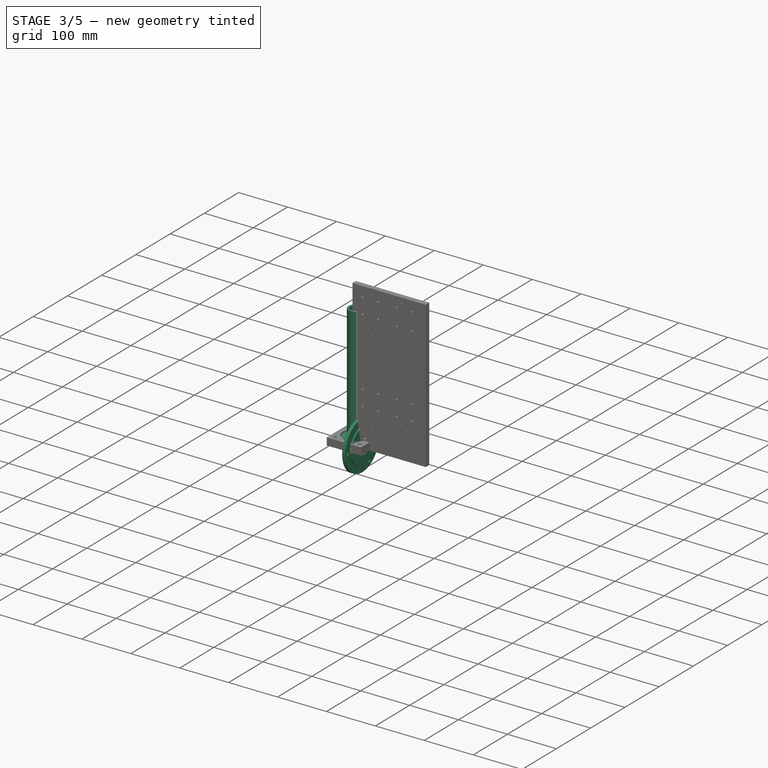
[diagram: stage 3 of 5 — iso view after this stage's code; geometry added in this stage tinted green]
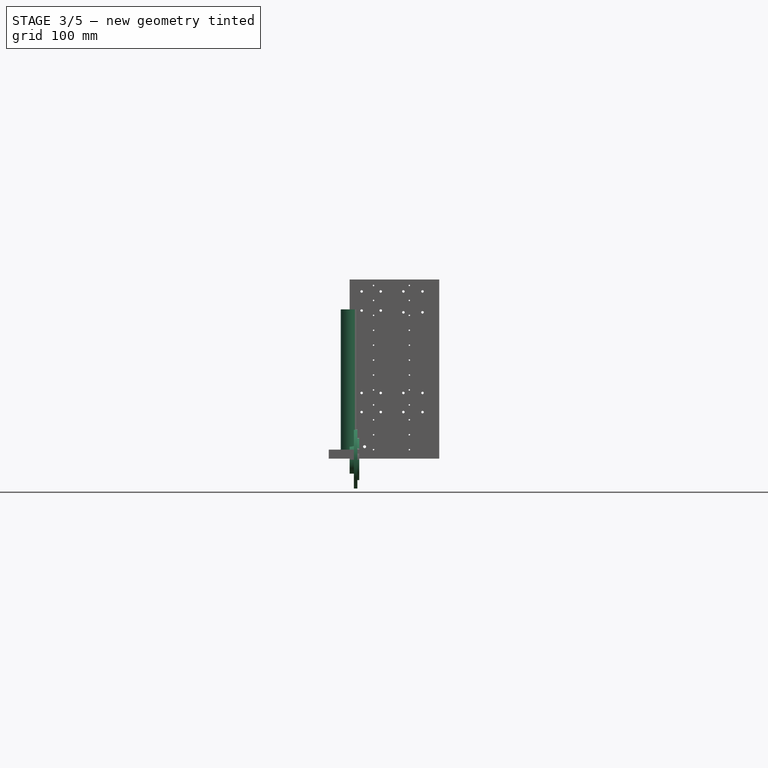
[diagram: stage 3 of 5 — front view after this stage's code; geometry added in this stage tinted green]
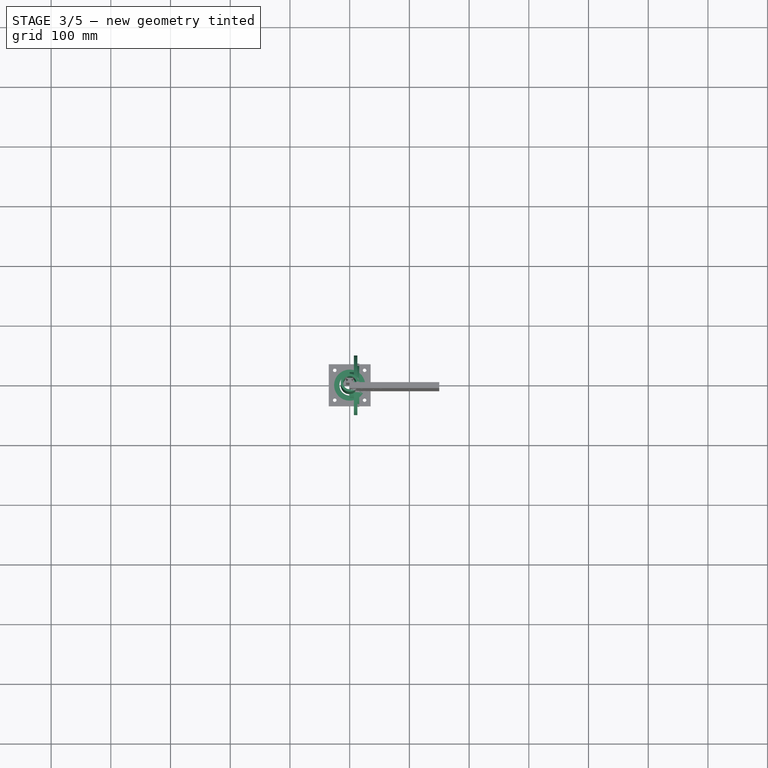
[diagram: stage 3 of 5 — top view after this stage's code; geometry added in this stage tinted green]
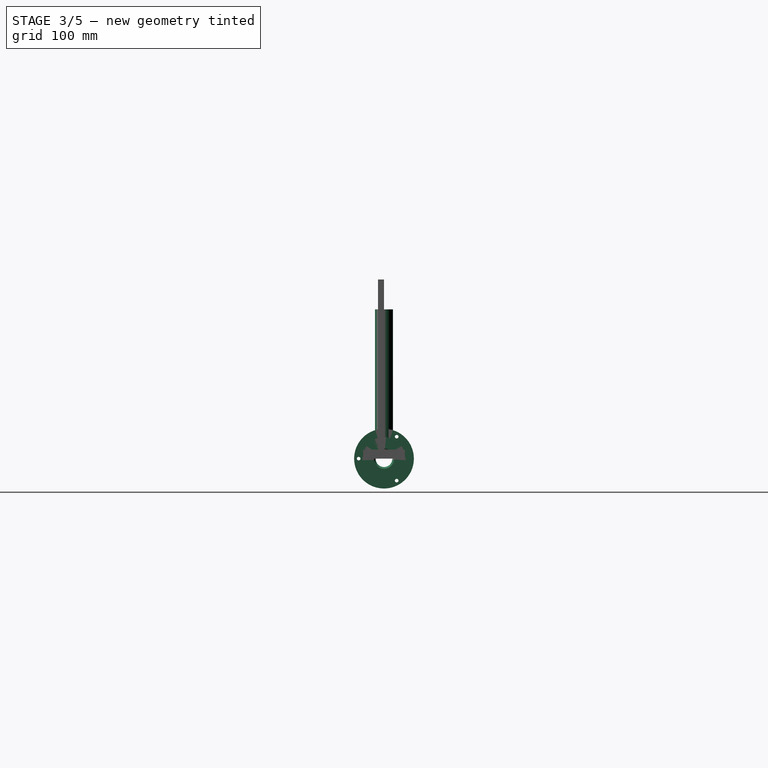
[diagram: stage 3 of 5 — right view after this stage's code; geometry added in this stage tinted green]
FEATURE [PartDesign::Body] Body006  label="FlangiaSupportoMandrinoExt"
  Group = -> [Sketch010,Pad006,Sketch011,Pocket004]
  Origin = -> Origin006
  Placement = pos=(-15,60,990) rot=(-1,0,0;1.5708rad)
  Tip = -> Pocket004
FEATURE [Sketcher::SketchObject] Sketch012
  FullyConstrained = true
  MapMode = 5
  Placement = pos=(0,0,0) rot=(1,0,0;1.5708rad)
  Support = -> [XZ_Plane007]
  sketch-geometry (8):
    g0: LineSegment StartX=0 StartY=14 StartZ=0 EndX=0 EndY=25 EndZ=0
    g1: LineSegment StartX=0 StartY=25 StartZ=0 EndX=7 EndY=25 EndZ=0
    g2: LineSegment StartX=7 StartY=25 StartZ=0 EndX=7 EndY=50 EndZ=0
    g3: LineSegment StartX=7 StartY=50 StartZ=0 EndX=13 EndY=50 EndZ=0
    g4: LineSegment StartX=13 StartY=50 StartZ=0 EndX=13 EndY=36 EndZ=0
    g5: LineSegment StartX=13 StartY=36 StartZ=0 EndX=16 EndY=36 EndZ=0
    g6: LineSegment StartX=16 StartY=36 StartZ=0 EndX=16 EndY=14 EndZ=0
    g7: LineSegment StartX=16 StartY=14 StartZ=0 EndX=0 EndY=14 EndZ=0
  constraints (24):
    c: PointOnObject(g0,g-2)
    c: PointOnObject(g0,g-2)
    c: Coincident(g1,g0)
    c: Horizontal(g1)
    c: Coincident(g2,g1)
    c: Vertical(g2)
    c: Horizontal(g3)
    c: Vertical(g4)
    c: Horizontal(g5)
    c: Coincident(g6,g5)
    c: Vertical(g6)
    c: Coincident(g7,g6)
    c: Coincident(g7,g0)
    c: Horizontal(g7)
    c: DistanceY(g0,g0) = 11
    c: DistanceY(g-1,g0) = 14
    c: DistanceX(g1,g1) = 7
    c: Coincident(g2,g3)
    c: Coincident(g4,g3)
    c: Coincident(g4,g5)
    c: DistanceX(g7,g7) = 16
    c: DistanceY(g2,g2) = 25
    c: DistanceX(g3,g3) = 6
    c: DistanceY(g6,g6) = 22
FEATURE [PartDesign::Revolution] Revolution
  Angle = 360
  Axis = (1,0,0)
  Base = (0,0,0)
  Placement = pos=(0,0,0) rot=(1,0,0;1.5708rad)
  Profile = -> Sketch012
  ReferenceAxis = -> X_Axis007
FEATURE [PartDesign::Chamfer] Chamfer
  Angle = 45
  Base = -> Revolution [Edge11]
  BaseFeature = -> Revolution
  ChamferType = 0
  FlipDirection = false
  Placement = pos=(0,0,0) rot=(1,0,0;1.5708rad)
  Size = 3
  Size2 = 1
  SupportTransform = false
  UseAllEdges = false
FEATURE [Sketcher::SketchObject] Sketch013
  FullyConstrained = false
  MapMode = 5
  Placement = pos=(7,0,0) rot=(0.707107,0,-0.707107;3.14159rad)
  Support = -> [Chamfer]
  sketch-geometry (5):
    g0: Circle CenterX=0 CenterY=0 CenterZ=0 NormalX=0 NormalY=0 NormalZ=1 AngleXU=0 Radius=42.5
    g1: Circle CenterX=0 CenterY=42.5 CenterZ=0 NormalX=0 NormalY=0 NormalZ=1 AngleXU=0 Radius=4
    g2: Circle CenterX=36.8061 CenterY=-21.25 CenterZ=0 NormalX=0 NormalY=0 NormalZ=1 AngleXU=0 Radius=4
    g3: Circle CenterX=-36.8061 CenterY=-21.25 CenterZ=0 NormalX=0 NormalY=0 NormalZ=1 AngleXU=0 Radius=4
    g4: LineSegment StartX=-66.7657 StartY=-21.25 StartZ=0 EndX=72.4096 EndY=-21.25 EndZ=0
  constraints (13):
    c: Coincident(g0,g-1)
    c: PointOnObject(g1,g0)
    c: PointOnObject(g1,g-2)
    c: Radius(g0) = 42.5
    c: PointOnObject(g2,g0)
    c: PointOnObject(g3,g0)
    c: Horizontal(g4)
    c: PointOnObject(g3,g4)
    c: PointOnObject(g2,g4)
    c: DistanceY(g4,g0) = 21.25
    c: Equal(g1,g3)
    c: Equal(g1,g2)
    c: Radius(g1) = 4
FEATURE [PartDesign::Hole] Hole
  BaseFeature = -> Chamfer
  CustomThreadClearance = 0
  Depth = 25
  DepthType = 0
  Diameter = 6
  DrillForDepth = false
  DrillPoint = 1
  DrillPointAngle = 118
  HoleCutCountersinkAngle = 90
  HoleCutCustomValues = false
  HoleCutDepth = 0
  HoleCutDiameter = 6.1
  HoleCutType = 0
  ModelThread = false
  Placement = pos=(0,0,0) rot=(1,0,0;1.5708rad)
  Profile = -> Sketch013
  Tapered = false
  TaperedAngle = 90
  ThreadClass = 0
  ThreadDepth = 23.5
  ThreadDepthType = 0
  ThreadDirection = 0
  ThreadFit = 0
  ThreadSize = 0
  ThreadType = 0
  Threaded = false
  UseCustomThreadClearance = false
FEATURE [PartDesign::Body] Body007  label="FlangiaMandrino"
  Group = -> [Sketch012,Revolution,Chamfer,Sketch013,Hole,Chamfer001]
  Origin = -> Origin007
  Placement = pos=(60,170,793) rot=(0,1,0;1.5708rad)
  Tip = -> Chamfer001
FEATURE [Sketcher::SketchObject] Sketch014
  FullyConstrained = true
  MapMode = 5
  Support = -> [XY_Plane008]
  sketch-geometry (2):
    g0: Circle CenterX=0 CenterY=0 CenterZ=0 NormalX=0 NormalY=0 NormalZ=1 AngleXU=0 Radius=17.5
    g1: Circle CenterX=0 CenterY=0 CenterZ=0 NormalX=0 NormalY=0 NormalZ=1 AngleXU=0 Radius=26
  constraints (4):
    c: Coincident(g0,g-1)
    c: Radius(g0) = 17.5
    c: Coincident(g1,g0)
    c: Radius(g1) = 26
FEATURE [PartDesign::Pad] Pad007
  Direction = (1,1,1)
  Length = 12
  Length2 = 100
  Profile = -> Sketch014
  Type = 0
FEATURE [PartDesign::Body] Body008  label="ReggispintaFlangia"
  Group = -> [Sketch014,Pad007]
  Origin = -> Origin008
  Placement = pos=(60,170,787) rot=(0,0,1;0rad)
  Tip = -> Pad007
FEATURE [Sketcher::SketchObject] Sketch015
  FullyConstrained = true
  MapMode = 5
  Support = -> [XY_Plane009]
  sketch-geometry (2):
    g0: Circle CenterX=0 CenterY=0 CenterZ=0 NormalX=0 NormalY=0 NormalZ=1 AngleXU=0 Radius=15
    g1: Circle CenterX=0 CenterY=0 CenterZ=0 NormalX=0 NormalY=0 NormalZ=1 AngleXU=0 Radius=11
  constraints (4):
    c: Coincident(g0,g-1)
    c: Radius(g0) = 15
    c: Coincident(g1,g0)
    c: Radius(g1) = 11
FEATURE [PartDesign::Pad] Pad008
  Direction = (1,1,1)
  Length = 250
  Length2 = 100
  Profile = -> Sketch015
  Type = 0
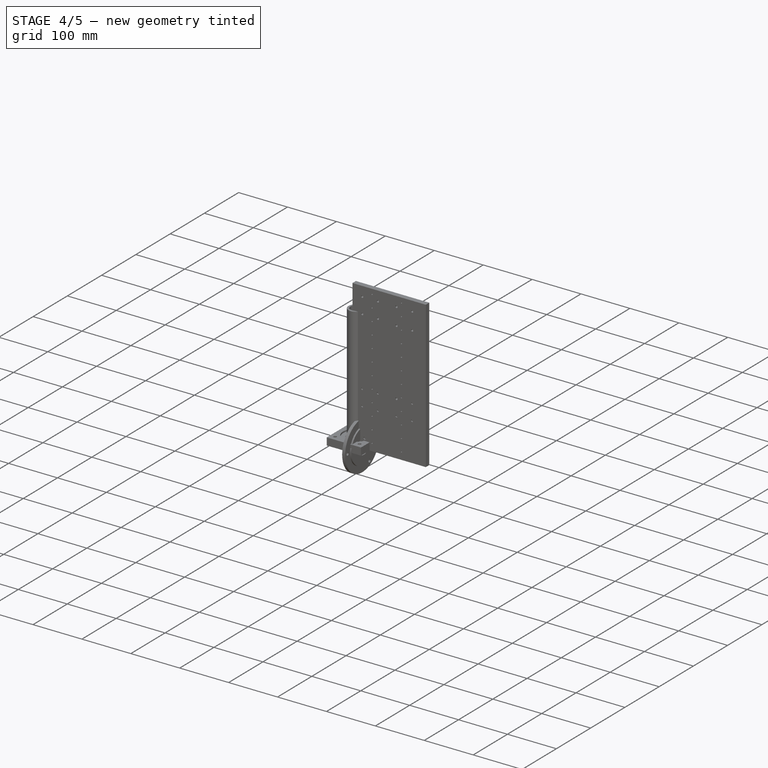
[diagram: stage 4 of 5 — iso view after this stage's code; geometry added in this stage tinted green]
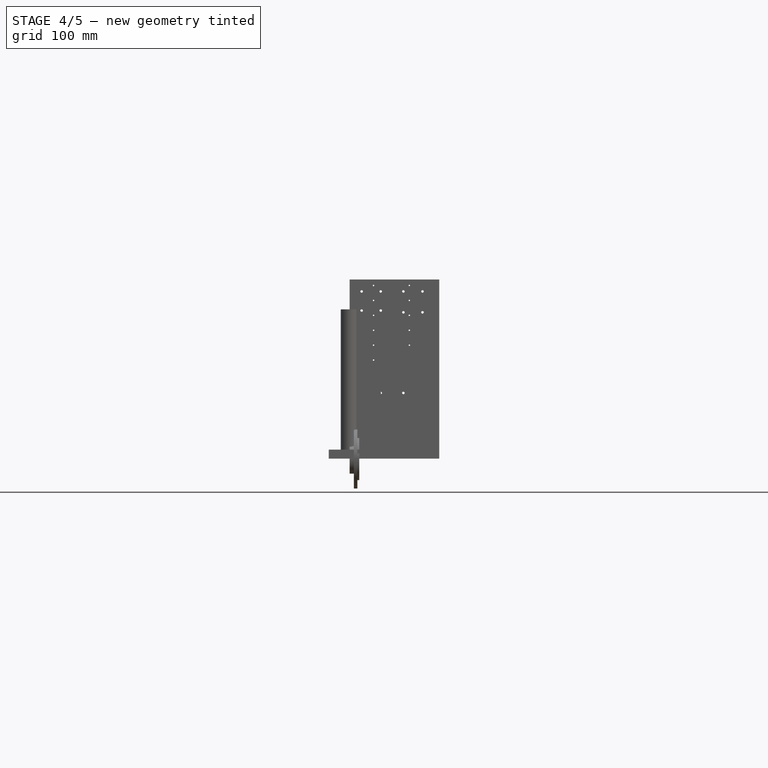
[diagram: stage 4 of 5 — front view after this stage's code; geometry added in this stage tinted green]
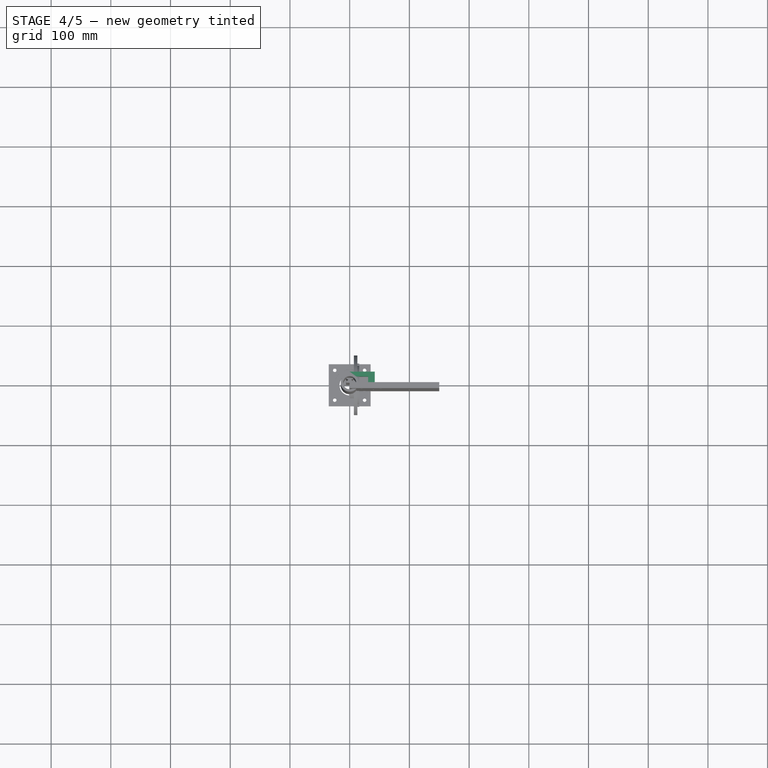
[diagram: stage 4 of 5 — top view after this stage's code; geometry added in this stage tinted green]
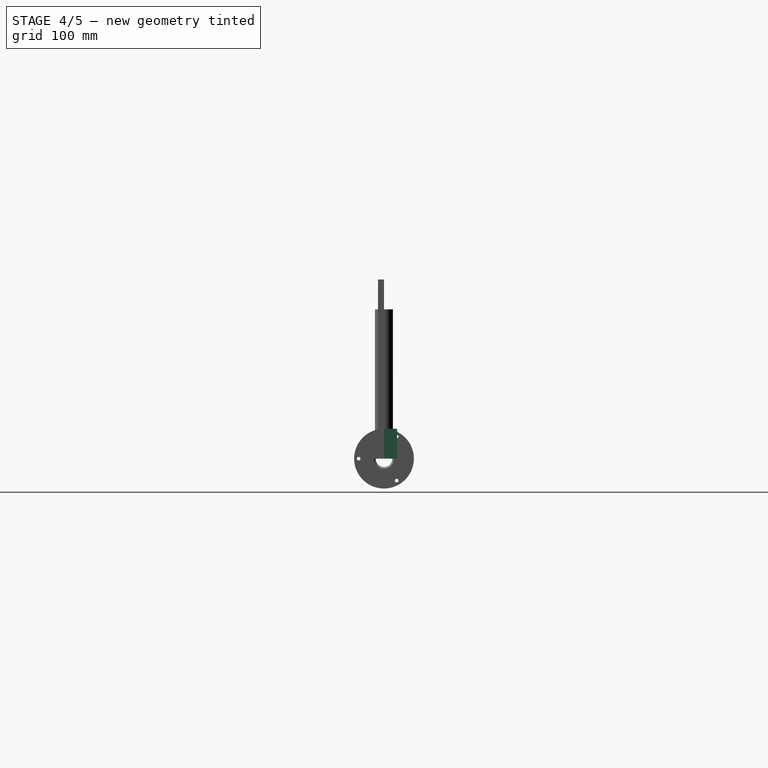
[diagram: stage 4 of 5 — right view after this stage's code; geometry added in this stage tinted green]
FEATURE [PartDesign::Body] Body003  label="Pattino-20"
  Group = -> [Sketch004,Pad003,Sketch005,Pocket001]
  Origin = -> Origin003
  Placement = pos=(-46,66,550) rot=(0,0,1;0rad)
  Tip = -> Pocket001
FEATURE [Sketcher::SketchObject] Sketch006
  FullyConstrained = true
  MapMode = 5
  Support = -> [XY_Plane004]
  sketch-geometry (8):
    g0: LineSegment StartX=0 StartY=0 StartZ=0 EndX=11 EndY=0 EndZ=0
    g1: LineSegment StartX=42 StartY=1e-16 StartZ=0 EndX=42 EndY=22 EndZ=0
    g2: LineSegment StartX=42 StartY=22 StartZ=0 EndX=0 EndY=22 EndZ=0
    g3: LineSegment StartX=0 StartY=22 StartZ=0 EndX=0 EndY=0 EndZ=0
    g4: LineSegment StartX=11 StartY=0 StartZ=0 EndX=11 EndY=14 EndZ=0
    g5: LineSegment StartX=11 StartY=14 StartZ=0 EndX=31 EndY=14 EndZ=0
    g6: LineSegment StartX=31 StartY=14 StartZ=0 EndX=31 EndY=0 EndZ=0
    g7: LineSegment StartX=31 StartY=0 StartZ=0 EndX=42 EndY=1e-16 EndZ=0
  constraints (22):
    c: Coincident(g7,g1)
    c: Coincident(g1,g2)
    c: Coincident(g2,g3)
    c: Coincident(g3,g0)
    c: Horizontal(g0)
    c: Horizontal(g2)
    c: Vertical(g1)
    c: Vertical(g3)
    c: Coincident(g0,g-1)
    c: DistanceY(g1,g1) = 22
    c: DistanceX(g2,g2) = 42
    c: Vertical(g4)
    c: Coincident(g5,g4)
    c: Horizontal(g5)
    c: Coincident(g6,g5)
    c: Vertical(g6)
    c: Coincident(g0,g4)
    c: Coincident(g7,g6)
    c: Tangent(g0,g7)
    c: DistanceX(g5,g5) = 20
    c: DistanceX(g0,g0) = 11
    c: DistanceY(g6,g6) = 14
FEATURE [PartDesign::Pad] Pad004
  Direction = (1,1,1)
  Length = 50
  Length2 = 100
  Profile = -> Sketch006
  Type = 0
FEATURE [PartDesign::Body] Body004  label="Pattin02-20"
  Group = -> [Sketch006,Pad004,Sketch007,Pocket002]
  Origin = -> Origin004
  Placement = pos=(124,66,550) rot=(0,0,1;0rad)
  Tip = -> Pocket002
FEATURE [App::MeasureDistance] Distance  label="Distance: 170,00 mm"
  Distance = 170
  P1 = (-15,75.6133,0)
  P2 = (155,75.6133,0)
FEATURE [App::MeasureDistance] Distance001  label="Distance: 40,00 mm"
  Distance = 40
  P1 = (40,60,0)
  P2 = (80,60,0)
FEATURE [Sketcher::SketchObject] Sketch008
  FullyConstrained = true
  MapMode = 5
  Placement = pos=(0,0,0) rot=(1,0,0;1.5708rad)
  Support = -> [XZ_Plane005]
  sketch-geometry (6):
    g0: LineSegment StartX=0 StartY=0 StartZ=0 EndX=150 EndY=0 EndZ=0
    g1: LineSegment StartX=150 StartY=0 StartZ=0 EndX=150 EndY=120 EndZ=0
    g2: LineSegment StartX=100 StartY=170 StartZ=0 EndX=50 EndY=170 EndZ=0
    g3: LineSegment StartX=0 StartY=120 StartZ=0 EndX=0 EndY=0 EndZ=0
    g4: LineSegment StartX=50 StartY=170 StartZ=0 EndX=0 EndY=120 EndZ=0
    g5: LineSegment StartX=100 StartY=170 StartZ=0 EndX=150 EndY=120 EndZ=0
  constraints (17):
    c: Coincident(g0,g1)
    c: Coincident(g3,g0)
    c: Horizontal(g0)
    c: Horizontal(g2)
    c: Vertical(g1)
    c: Vertical(g3)
    c: Coincident(g0,g-1)
    c: DistanceX(g0,g0) = 150
    c: Coincident(g2,g5)
    c: Coincident(g1,g5)
    c: Coincident(g2,g4)
    c: Coincident(g3,g4)
    c: Angle(g-2,g4) = 2.35619
    c: Angle(g-2,g5) = 0.785398
    c: DistanceY(g1,g1) = 120
    c: Equal(g1,g3)
    c: DistanceY(g1,g2) = 50
FEATURE [PartDesign::Pad] Pad005
  Direction = (1,1,1)
  Length = 8
  Length2 = 100
  Placement = pos=(0,0,0) rot=(1,0,0;1.5708rad)
  Profile = -> Sketch008
  Type = 0
FEATURE [Sketcher::SketchObject] Sketch009
  FullyConstrained = false
  MapMode = 5
  Placement = pos=(0,-8,3.5e-15) rot=(1,0,0;1.5708rad)
  Support = -> [Pad005]
  sketch-geometry (1):
    g0: Circle CenterX=75 CenterY=110 CenterZ=0 NormalX=0 NormalY=0 NormalZ=1 AngleXU=0 Radius=22.7501
  constraints (2):
    c: DistanceX(g-1,g0) = 75
    c: DistanceY(g-1,g0) = 110
FEATURE [PartDesign::Pocket] Pocket003
  BaseFeature = -> Pad005
  Direction = (1,1,1)
  Length = 5
  Length2 = 100
  Placement = pos=(0,0,0) rot=(1,0,0;1.5708rad)
  Profile = -> Sketch009
  Type = 1
FEATURE [PartDesign::Body] Body005  label="FlangiaSupportoMandrino"
  Group = -> [Sketch008,Pad005,Sketch009,Pocket003]
  Origin = -> Origin005
  Placement = pos=(-15,60,800) rot=(-1,0,0;1.5708rad)
  Tip = -> Pocket003
FEATURE [Sketcher::SketchObject] Sketch010
  FullyConstrained = true
  MapMode = 5
  Placement = pos=(0,0,0) rot=(1,0,0;1.5708rad)
  Support = -> [XZ_Plane006]
  sketch-geometry (6):
    g0: LineSegment StartX=0 StartY=0 StartZ=0 EndX=150 EndY=0 EndZ=0
    g1: LineSegment StartX=150 StartY=0 StartZ=0 EndX=150 EndY=120 EndZ=0
    g2: LineSegment StartX=100 StartY=170 StartZ=0 EndX=50 EndY=170 EndZ=0
    g3: LineSegment StartX=0 StartY=120 StartZ=0 EndX=0 EndY=0 EndZ=0
    g4: LineSegment StartX=50 StartY=170 StartZ=0 EndX=0 EndY=120 EndZ=0
    g5: LineSegment StartX=100 StartY=170 StartZ=0 EndX=150 EndY=120 EndZ=0
  constraints (17):
    c: Coincident(g0,g1)
    c: Coincident(g3,g0)
    c: Horizontal(g0)
    c: Horizontal(g2)
    c: Vertical(g1)
    c: Vertical(g3)
    c: Coincident(g0,g-1)
    c: DistanceX(g0,g0) = 150
    c: Coincident(g2,g5)
    c: Coincident(g1,g5)
    c: Coincident(g2,g4)
    c: Coincident(g3,g4)
    c: Angle(g-2,g4) = 2.35619
    c: Angle(g-2,g5) = 0.785398
    c: DistanceY(g1,g1) = 120
    c: Equal(g1,g3)
    c: DistanceY(g1,g2) = 50
FEATURE [PartDesign::Pad] Pad006
  Direction = (1,1,1)
  Length = 8
  Length2 = 100
  Placement = pos=(0,0,0) rot=(1,0,0;1.5708rad)
  Profile = -> Sketch010
  Type = 0
FEATURE [Sketcher::SketchObject] Sketch011
  FullyConstrained = false
  MapMode = 5
  Placement = pos=(0,-8,3.5e-15) rot=(1,0,0;1.5708rad)
  Support = -> [Pad006]
  sketch-geometry (1):
    g0: Circle CenterX=75 CenterY=110 CenterZ=0 NormalX=0 NormalY=0 NormalZ=1 AngleXU=0 Radius=22.7501
  constraints (2):
    c: DistanceX(g-1,g0) = 75
    c: DistanceY(g-1,g0) = 110
FEATURE [PartDesign::Pocket] Pocket004
  BaseFeature = -> Pad006
  Direction = (1,1,1)
  Length = 5
  Length2 = 100
  Placement = pos=(0,0,0) rot=(1,0,0;1.5708rad)
  Profile = -> Sketch011
  Type = 1
FEATURE [PartDesign::Chamfer] Chamfer001
  Angle = 45
  Base = -> Hole [Edge21,Edge19,Edge17]
  BaseFeature = -> Hole
  ChamferType = 0
  FlipDirection = false
  Placement = pos=(0,0,0) rot=(1,0,0;1.5708rad)
  Size = 2
  Size2 = 1
  SupportTransform = false
  UseAllEdges = false
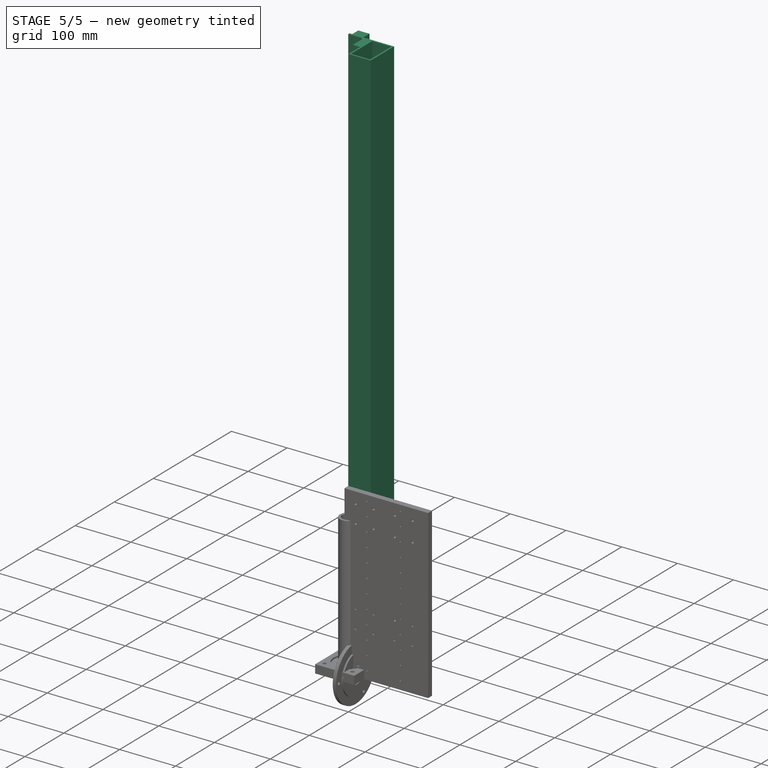
[diagram: stage 5 of 5 — iso view after this stage's code; geometry added in this stage tinted green]
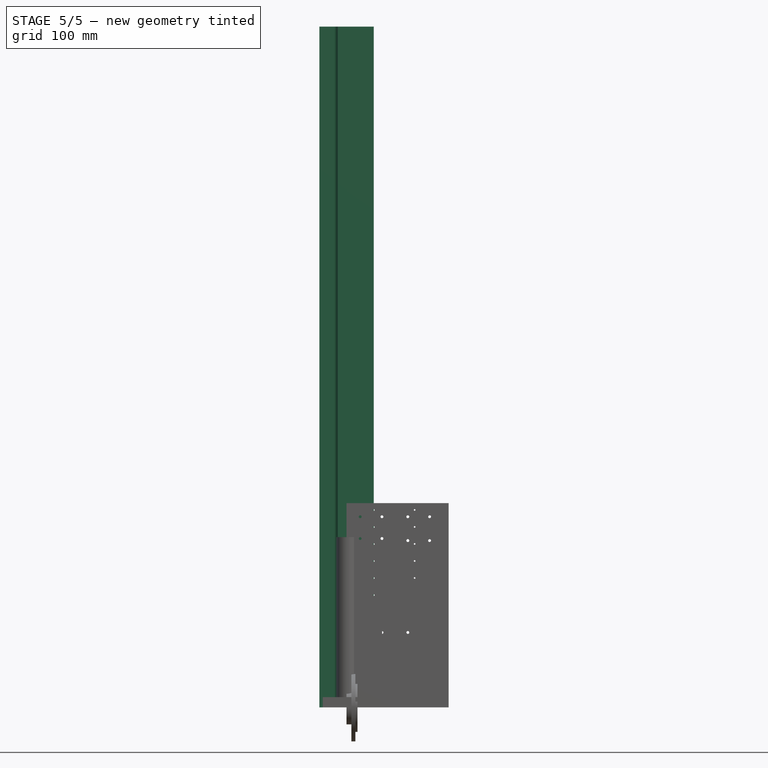
[diagram: stage 5 of 5 — front view after this stage's code; geometry added in this stage tinted green]
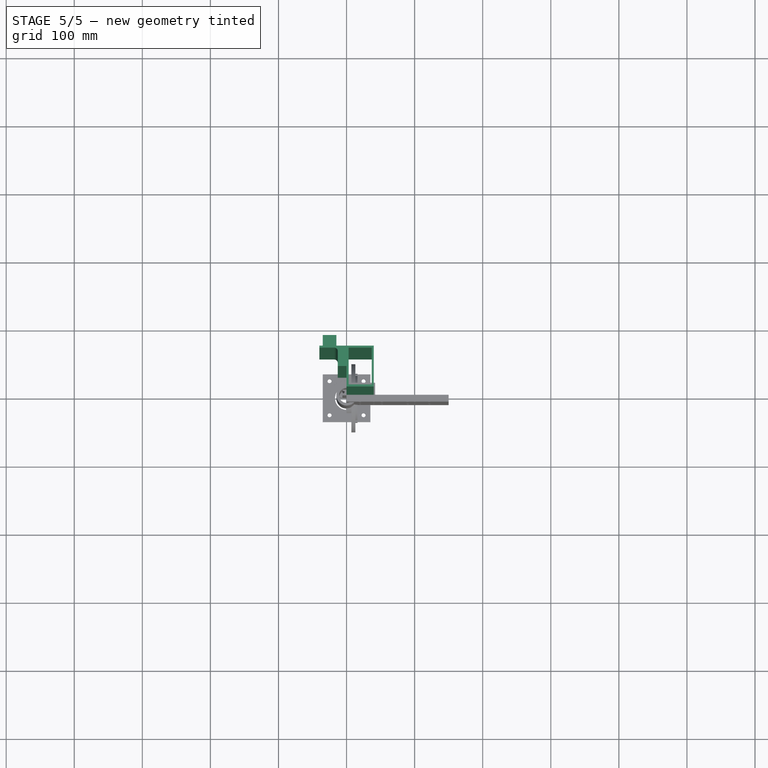
[diagram: stage 5 of 5 — top view after this stage's code; geometry added in this stage tinted green]
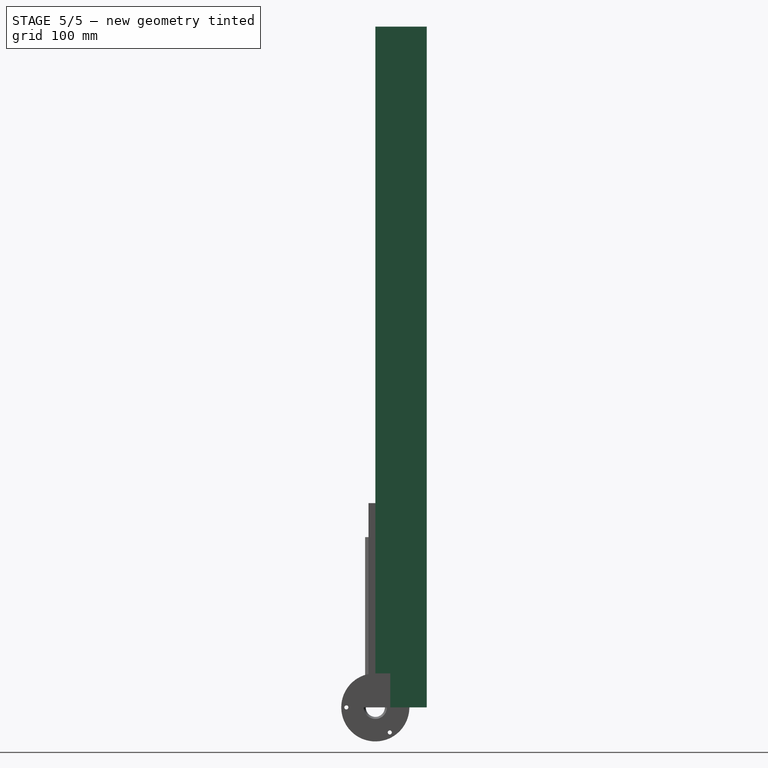
[diagram: stage 5 of 5 — right view after this stage's code; geometry added in this stage tinted green]
FEATURE [Sketcher::SketchObject] Sketch
  FullyConstrained = true
  MapMode = 5
  Support = -> [XY_Plane]
  sketch-geometry (17):
    g0: LineSegment StartX=0 StartY=0 StartZ=0 EndX=40 EndY=0 EndZ=0
    g1: LineSegment StartX=40 StartY=0 StartZ=0 EndX=40 EndY=60 EndZ=0
    g2: LineSegment StartX=40 StartY=60 StartZ=0 EndX=-15 EndY=60 EndZ=0
    g3: LineSegment StartX=0 StartY=30 StartZ=0 EndX=0 EndY=0 EndZ=0
    g4: LineSegment StartX=3 StartY=57 StartZ=0 EndX=37 EndY=57 EndZ=0
    g5: LineSegment StartX=37 StartY=57 StartZ=0 EndX=37 EndY=3 EndZ=0
    g6: LineSegment StartX=37 StartY=3 StartZ=0 EndX=3 EndY=3 EndZ=0
    g7: LineSegment StartX=3 StartY=3 StartZ=0 EndX=3 EndY=57 EndZ=0
    g8: LineSegment StartX=-40 StartY=60 StartZ=0 EndX=-40 EndY=57 EndZ=0
    g9: LineSegment StartX=-40 StartY=57 StartZ=0 EndX=-18 EndY=57 EndZ=0
    g10: LineSegment StartX=-13 StartY=52 StartZ=0 EndX=-13 EndY=30 EndZ=0
    g11: LineSegment StartX=-13 StartY=30 StartZ=0 EndX=0 EndY=30 EndZ=0
    g12: ArcOfCircle CenterX=-18 CenterY=52 CenterZ=0 NormalX=0 NormalY=0 NormalZ=1 AngleXU=0 Radius=5 StartAngle=-5.3e-15 EndAngle=1.5708
    g13: LineSegment StartX=-35 StartY=60 StartZ=0 EndX=-35 EndY=75.5 EndZ=0
    g14: LineSegment StartX=-35 StartY=75.5 StartZ=0 EndX=-15 EndY=75.5 EndZ=0
    g15: LineSegment StartX=-15 StartY=75.5 StartZ=0 EndX=-15 EndY=60 EndZ=0
    g16: LineSegment StartX=-35 StartY=60 StartZ=0 EndX=-40 EndY=60 EndZ=0
  constraints (48):
    c: Coincident(g0,g1)
    c: Coincident(g1,g2)
    c: Coincident(g3,g0)
    c: Horizontal(g0)
    c: Horizontal(g2)
    c: Vertical(g1)
    c: Vertical(g3)
    c: Coincident(g0,g-1)
    c: DistanceX(g0,g0) = 40
    c: DistanceY(g1,g1) = 60
    c: Coincident(g4,g5)
    c: Coincident(g5,g6)
    c: Coincident(g6,g7)
    c: Coincident(g7,g4)
    c: Horizontal(g4)
    c: Horizontal(g6)
    c: Vertical(g5)
    c: Vertical(g7)
    c: DistanceX(g6,g6) = 34
    c: DistanceY(g5,g5) = 54
    c: DistanceX(g0,g6) = 3
    c: DistanceY(g0,g6) = 3
    c: Vertical(g8)
    c: Coincident(g9,g8)
    c: Horizontal(g9)
    c: Vertical(g10)
    c: Coincident(g11,g10)
    c: Horizontal(g11)
    c: Coincident(g3,g11)
    c: Coincident(g16,g8)
    c: DistanceX(g16,g2) = 80
    c: DistanceY(g8,g8) = 3
    c: Tangent(g10,g12) = 1.5708
    c: Tangent(g9,g12) = 1.5708
    c: Radius(g12) = 5
    c: DistanceX(g9,g9) = 22
    c: DistanceY(g10,g10) = 22
    c: Vertical(g13)
    c: Horizontal(g14)
    c: Coincident(g15,g14)
    c: Vertical(g15)
    c: Coincident(g13,g14)
    c: Coincident(g2,g15)
    c: Coincident(g16,g13)
    c: Tangent(g2,g16)
    c: DistanceX(g14,g14) = 20
    c: DistanceX(g16,g16) = 5
    c: DistanceY(g15,g15) = 15.5
FEATURE [PartDesign::Pad] Pad
  Direction = (1,1,1)
  Length = 1000
  Length2 = 100
  Profile = -> Sketch
  Type = 0
FEATURE [PartDesign::Body] Body  label="barra"
  Group = -> [Sketch,Pad]
  Origin = -> Origin
  Tip = -> Pad
FEATURE [Sketcher::SketchObject] Sketch001
  FullyConstrained = true
  MapMode = 5
  Support = -> [XY_Plane001]
  sketch-geometry (17):
    g0: LineSegment StartX=0 StartY=0 StartZ=0 EndX=40 EndY=0 EndZ=0
    g1: LineSegment StartX=40 StartY=0 StartZ=0 EndX=40 EndY=60 EndZ=0
    g2: LineSegment StartX=40 StartY=60 StartZ=0 EndX=-15 EndY=60 EndZ=0
    g3: LineSegment StartX=0 StartY=30 StartZ=0 EndX=0 EndY=0 EndZ=0
    g4: LineSegment StartX=3 StartY=57 StartZ=0 EndX=37 EndY=57 EndZ=0
    g5: LineSegment StartX=37 StartY=57 StartZ=0 EndX=37 EndY=3 EndZ=0
    g6: LineSegment StartX=37 StartY=3 StartZ=0 EndX=3 EndY=3 EndZ=0
    g7: LineSegment StartX=3 StartY=3 StartZ=0 EndX=3 EndY=57 EndZ=0
    g8: LineSegment StartX=-40 StartY=60 StartZ=0 EndX=-40 EndY=57 EndZ=0
    g9: LineSegment StartX=-40 StartY=57 StartZ=0 EndX=-18 EndY=57 EndZ=0
    g10: LineSegment StartX=-13 StartY=52 StartZ=0 EndX=-13 EndY=30 EndZ=0
    g11: LineSegment StartX=-13 StartY=30 StartZ=0 EndX=0 EndY=30 EndZ=0
    g12: ArcOfCircle CenterX=-18 CenterY=52 CenterZ=0 NormalX=0 NormalY=0 NormalZ=1 AngleXU=0 Radius=5 StartAngle=-5.3e-15 EndAngle=1.5708
    g13: LineSegment StartX=-35 StartY=60 StartZ=0 EndX=-35 EndY=75.5 EndZ=0
    g14: LineSegment StartX=-35 StartY=75.5 StartZ=0 EndX=-15 EndY=75.5 EndZ=0
    g15: LineSegment StartX=-15 StartY=75.5 StartZ=0 EndX=-15 EndY=60 EndZ=0
    g16: LineSegment StartX=-35 StartY=60 StartZ=0 EndX=-40 EndY=60 EndZ=0
  constraints (48):
    c: Coincident(g0,g1)
    c: Coincident(g1,g2)
    c: Coincident(g3,g0)
    c: Horizontal(g0)
    c: Horizontal(g2)
    c: Vertical(g1)
    c: Vertical(g3)
    c: Coincident(g0,g-1)
    c: DistanceX(g0,g0) = 40
    c: DistanceY(g1,g1) = 60
    c: Coincident(g4,g5)
    c: Coincident(g5,g6)
    c: Coincident(g6,g7)
    c: Coincident(g7,g4)
    c: Horizontal(g4)
    c: Horizontal(g6)
    c: Vertical(g5)
    c: Vertical(g7)
    c: DistanceX(g6,g6) = 34
    c: DistanceY(g5,g5) = 54
    c: DistanceX(g0,g6) = 3
    c: DistanceY(g0,g6) = 3
    c: Vertical(g8)
    c: Coincident(g9,g8)
    c: Horizontal(g9)
    c: Vertical(g10)
    c: Coincident(g11,g10)
    c: Horizontal(g11)
    c: Coincident(g3,g11)
    c: Coincident(g16,g8)
    c: DistanceX(g16,g2) = 80
    c: DistanceY(g8,g8) = 3
    c: Tangent(g10,g12) = 1.5708
    c: Tangent(g9,g12) = 1.5708
    c: Radius(g12) = 5
    c: DistanceX(g9,g9) = 22
    c: DistanceY(g10,g10) = 22
    c: Vertical(g13)
    c: Horizontal(g14)
    c: Coincident(g15,g14)
    c: Vertical(g15)
    c: Coincident(g13,g14)
    c: Coincident(g2,g15)
    c: Coincident(g16,g13)
    c: Tangent(g2,g16)
    c: DistanceX(g14,g14) = 20
    c: DistanceX(g16,g16) = 5
    c: DistanceY(g15,g15) = 15.5
FEATURE [PartDesign::Pad] Pad001
  Direction = (1,1,1)
  Length = 1000
  Length2 = 100
  Profile = -> Sketch001
  Type = 0
FEATURE [Sketcher::SketchObject] Sketch004
  FullyConstrained = true
  MapMode = 5
  Support = -> [XY_Plane003]
  sketch-geometry (8):
    g0: LineSegment StartX=0 StartY=0 StartZ=0 EndX=11 EndY=0 EndZ=0
    g1: LineSegment StartX=42 StartY=1e-16 StartZ=0 EndX=42 EndY=22 EndZ=0
    g2: LineSegment StartX=42 StartY=22 StartZ=0 EndX=0 EndY=22 EndZ=0
    g3: LineSegment StartX=0 StartY=22 StartZ=0 EndX=0 EndY=0 EndZ=0
    g4: LineSegment StartX=11 StartY=0 StartZ=0 EndX=11 EndY=14 EndZ=0
    g5: LineSegment StartX=11 StartY=14 StartZ=0 EndX=31 EndY=14 EndZ=0
    g6: LineSegment StartX=31 StartY=14 StartZ=0 EndX=31 EndY=0 EndZ=0
    g7: LineSegment StartX=31 StartY=0 StartZ=0 EndX=42 EndY=1e-16 EndZ=0
  constraints (22):
    c: Coincident(g7,g1)
    c: Coincident(g1,g2)
    c: Coincident(g2,g3)
    c: Coincident(g3,g0)
    c: Horizontal(g0)
    c: Horizontal(g2)
    c: Vertical(g1)
    c: Vertical(g3)
    c: Coincident(g0,g-1)
    c: DistanceY(g1,g1) = 22
    c: DistanceX(g2,g2) = 42
    c: Vertical(g4)
    c: Coincident(g5,g4)
    c: Horizontal(g5)
    c: Coincident(g6,g5)
    c: Vertical(g6)
    c: Coincident(g0,g4)
    c: Coincident(g7,g6)
    c: Tangent(g0,g7)
    c: DistanceX(g5,g5) = 20
    c: DistanceX(g0,g0) = 11
    c: DistanceY(g6,g6) = 14
FEATURE [PartDesign::Pad] Pad003
  Direction = (1,1,1)
  Length = 50
  Length2 = 100
  Profile = -> Sketch004
  Type = 0
FEATURE [Sketcher::SketchObject] Sketch005
  FullyConstrained = true
  MapMode = 5
  Placement = pos=(0,22,0) rot=(0,0.707107,0.707107;3.14159rad)
  Support = -> [Pad003]
  sketch-geometry (8):
    g0: LineSegment StartX=-37 StartY=41 StartZ=0 EndX=-37 EndY=9 EndZ=0
    g1: LineSegment StartX=-37 StartY=9 StartZ=0 EndX=-5 EndY=9 EndZ=0
    g2: Circle CenterX=-37 CenterY=41 CenterZ=0 NormalX=0 NormalY=0 NormalZ=1 AngleXU=0 Radius=2.1
    g3: Circle CenterX=-37 CenterY=9 CenterZ=0 NormalX=0 NormalY=0 NormalZ=1 AngleXU=0 Radius=2e-16
    g4: Circle CenterX=-5 CenterY=9 CenterZ=0 NormalX=0 NormalY=0 NormalZ=1 AngleXU=0 Radius=2.1
    g5: Circle CenterX=-5 CenterY=41 CenterZ=0 NormalX=0 NormalY=0 NormalZ=1 AngleXU=0 Radius=2.1
    g6: LineSegment StartX=-37 StartY=41 StartZ=0 EndX=-5 EndY=41 EndZ=0
    g7: Circle CenterX=-37 CenterY=9 CenterZ=0 NormalX=0 NormalY=0 NormalZ=1 AngleXU=0 Radius=2.1
  constraints (20):
    c: Vertical(g0)
    c: Coincident(g1,g0)
    c: Horizontal(g1)
    c: Coincident(g2,g0)
    c: Coincident(g3,g0)
    c: Tangent(g3,g1)
    c: Coincident(g4,g1)
    c: Coincident(g6,g0)
    c: Coincident(g6,g5)
    c: Coincident(g7,g0)
    c: Equal(g2,g7)
    c: Equal(g2,g5)
    c: Equal(g2,g4)
    c: Radius(g2) = 2.1
    c: Horizontal(g5,g0)
    c: DistanceY(g0,g0) = 32
    c: Equal(g6,g1)
    c: DistanceX(g1,g1) = 32
    c: DistanceX(g1,g-1) = 5
    c: DistanceY(g-1,g1) = 9
FEATURE [PartDesign::Pocket] Pocket001
  BaseFeature = -> Pad003
  Direction = (1,1,1)
  Length = 6
  Length2 = 100
  Profile = -> Sketch005
  Type = 0
FEATURE [Sketcher::SketchObject] Sketch007
  FullyConstrained = true
  MapMode = 5
  Placement = pos=(0,22,0) rot=(0,0.707107,0.707107;3.14159rad)
  Support = -> [Pad004]
  sketch-geometry (8):
    g0: LineSegment StartX=-37 StartY=41 StartZ=0 EndX=-37 EndY=9 EndZ=0
    g1: LineSegment StartX=-37 StartY=9 StartZ=0 EndX=-5 EndY=9 EndZ=0
    g2: Circle CenterX=-37 CenterY=41 CenterZ=0 NormalX=0 NormalY=0 NormalZ=1 AngleXU=0 Radius=2.1
    g3: Circle CenterX=-37 CenterY=9 CenterZ=0 NormalX=0 NormalY=0 NormalZ=1 AngleXU=0 Radius=0
    g4: Circle CenterX=-5 CenterY=9 CenterZ=0 NormalX=0 NormalY=0 NormalZ=1 AngleXU=0 Radius=2.1
    g5: Circle CenterX=-5 CenterY=41 CenterZ=0 NormalX=0 NormalY=0 NormalZ=1 AngleXU=0 Radius=2.1
    g6: LineSegment StartX=-37 StartY=41 StartZ=0 EndX=-5 EndY=41 EndZ=0
    g7: Circle CenterX=-37 CenterY=9 CenterZ=0 NormalX=0 NormalY=0 NormalZ=1 AngleXU=0 Radius=2.1
  constraints (20):
    c: Vertical(g0)
    c: Coincident(g1,g0)
    c: Horizontal(g1)
    c: Coincident(g2,g0)
    c: Coincident(g3,g0)
    c: Tangent(g3,g1)
    c: Coincident(g4,g1)
    c: Coincident(g6,g0)
    c: Coincident(g6,g5)
    c: Coincident(g7,g0)
    c: Equal(g2,g7)
    c: Equal(g2,g5)
    c: Equal(g2,g4)
    c: Radius(g2) = 2.1
    c: Horizontal(g5,g0)
    c: DistanceY(g0,g0) = 32
    c: Equal(g6,g1)
    c: DistanceX(g1,g1) = 32
    c: DistanceX(g1,g-1) = 5
    c: DistanceY(g-1,g1) = 9
FEATURE [PartDesign::Pocket] Pocket002
  BaseFeature = -> Pad004
  Direction = (1,1,1)
  Length = 6
  Length2 = 100
  Profile = -> Sketch007
  Type = 0
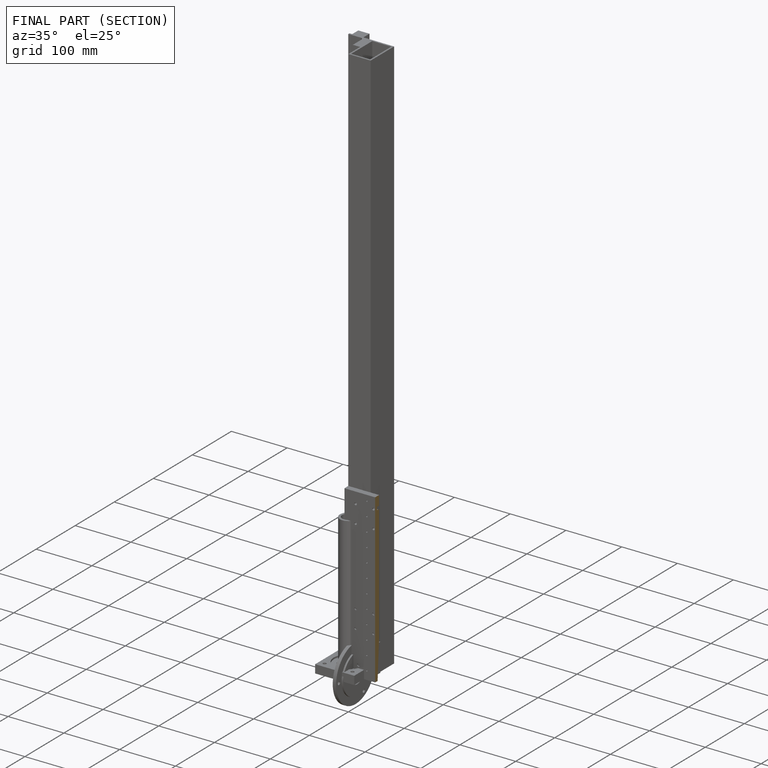
[diagram: finished part — half-section view (interior)]
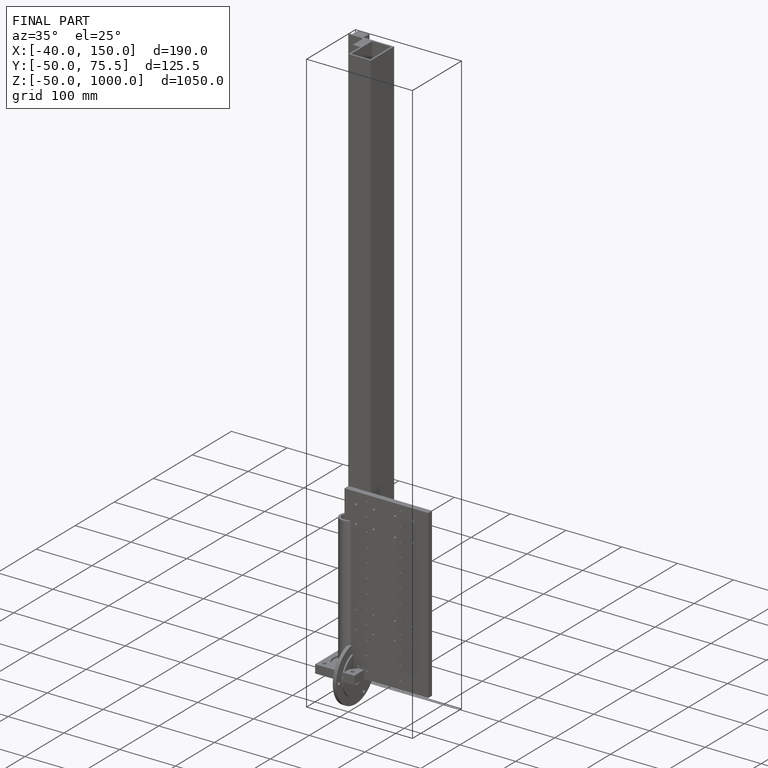
[diagram: finished part — iso view with bounding-box wireframe]
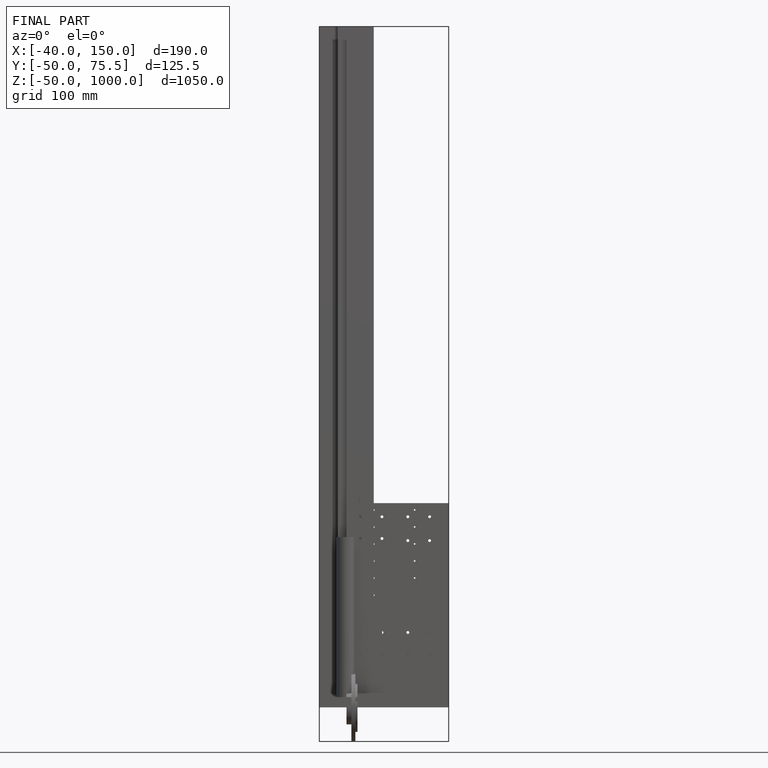
[diagram: finished part — front view with bounding-box wireframe]
